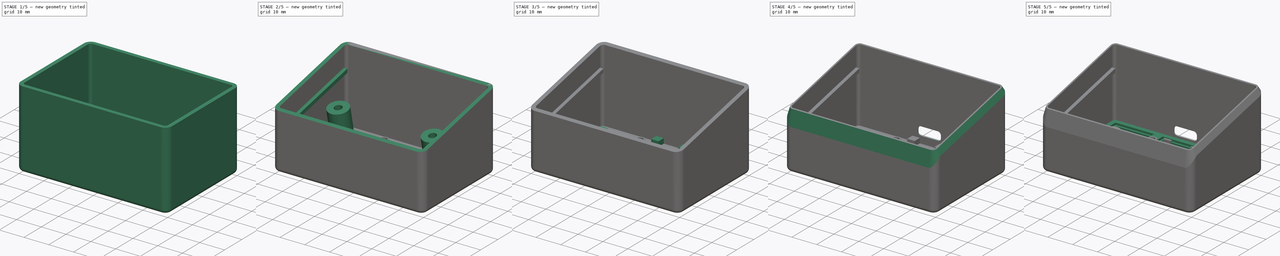
[diagram: build sequence overview — one tinted view per stage of 5, left to right]
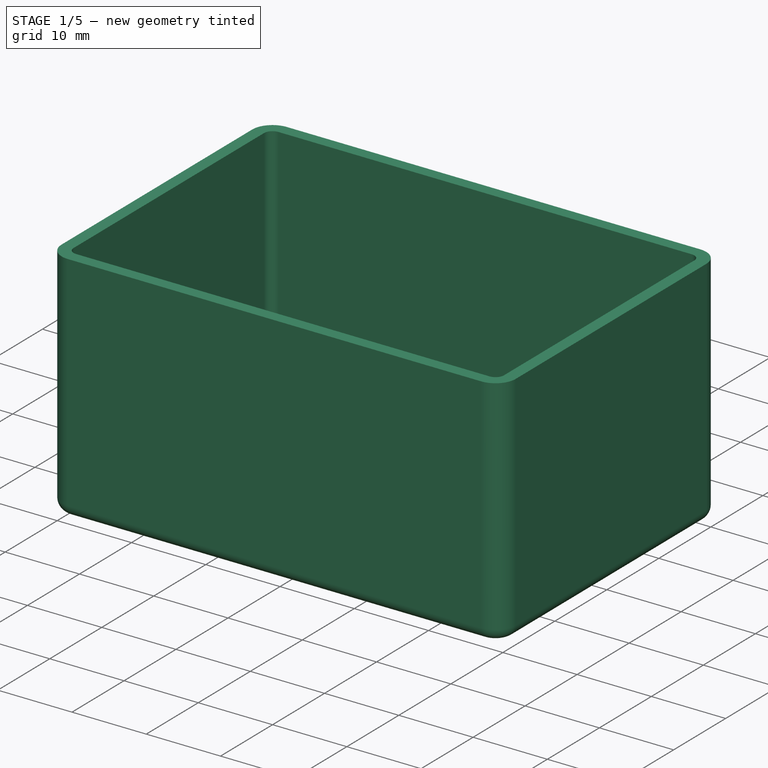
[diagram: stage 1 of 5 — iso view after this stage's code; geometry added in this stage tinted green]
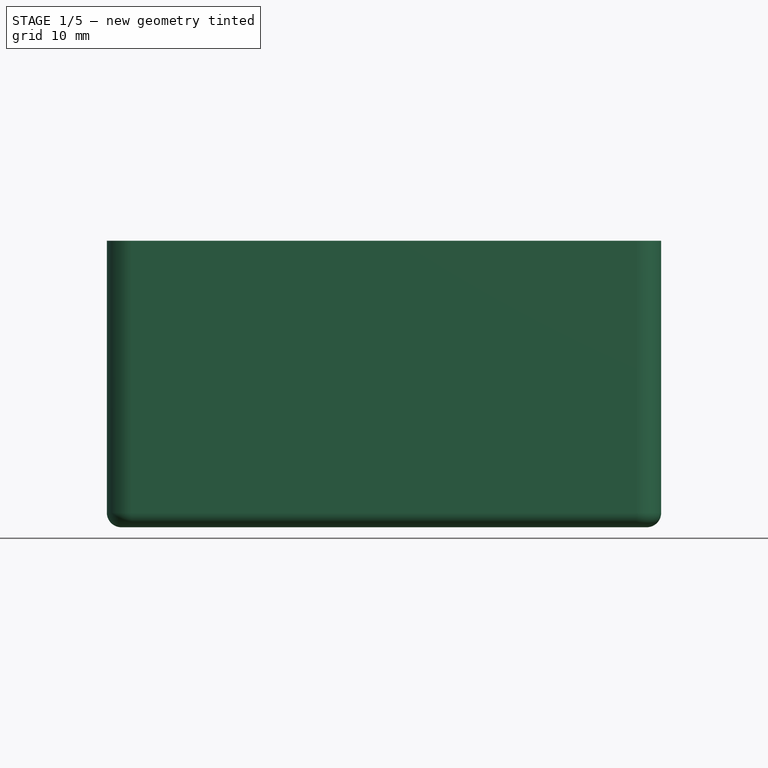
[diagram: stage 1 of 5 — front view after this stage's code; geometry added in this stage tinted green]
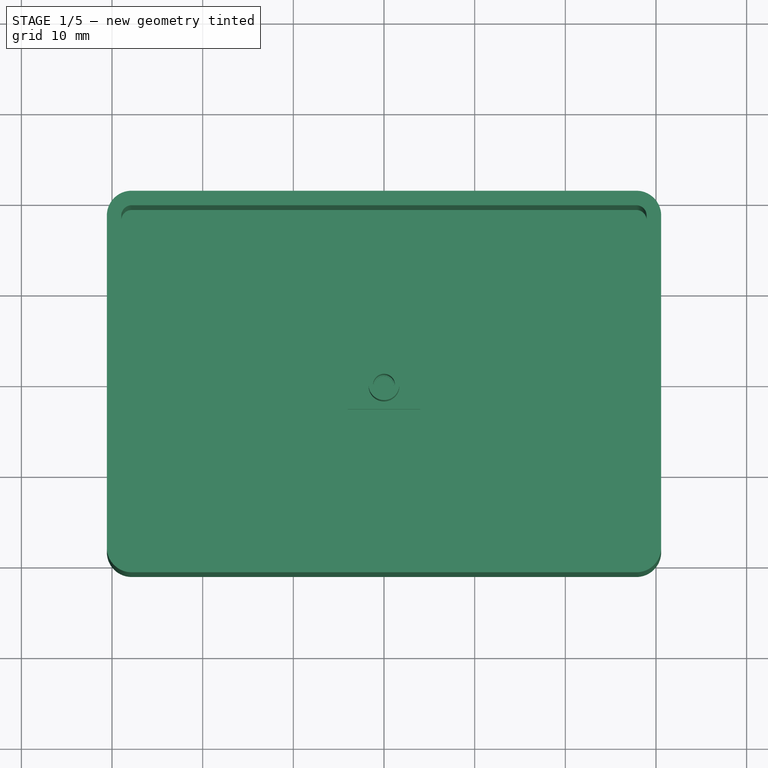
[diagram: stage 1 of 5 — top view after this stage's code; geometry added in this stage tinted green]
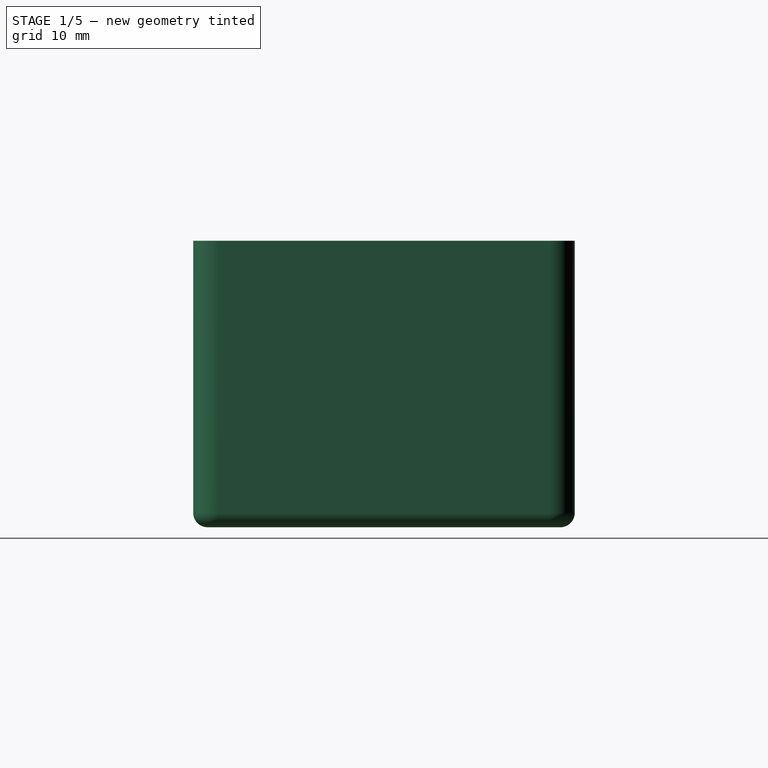
[diagram: stage 1 of 5 — right view after this stage's code; geometry added in this stage tinted green]
FCSTD DOCUMENT  (FreeCAD 1.0R39319 (Git))
Label: MacroPad3x2
License: All rights reserved
LicenseURL: https://en.wikipedia.org/wiki/All_rights_reserved
objects: Sketcher::SketchObject×15, PartDesign::Pad×8, PartDesign::Pocket×6, PartDesign::Chamfer×4, PartDesign::Body×4, Spreadsheet::Sheet×1, PartDesign::Thickness×1, PartDesign::Mirrored×1, PartDesign::Plane×1
note: 94 computed .brp shape members not serialized (recipe doc carries the construction recipe); baked Part::Feature solids carry a one-line shape summary decoded from their .brp

FEATURE [Sketcher::SketchObject] Sketch004
  ArcFitTolerance = 1e-06
  AttachmentSupport = -> [Pocket]
  ExternalGeometry = -> [Pocket]
  FullyConstrained = true
  MakeInternals = false
  MapMode = 5
  Placement = pos=(0,0,2.3) rot=(0,0,1;0rad)
  expr: Constraints[1] = Spreadsheet.plate_mouting_hole_diameter
  sketch-geometry (4):
    g0: GeomPoint [constr] X=-19.05 Y=4.126e-13 Z=0
    g1: GeomPoint [constr] X=19.05 Y=-6.2551e-12 Z=0
    g2: Circle CenterX=-19.05 CenterY=4.126e-13 CenterZ=0 NormalX=0 NormalY=0 NormalZ=1 AngleXU=0 Radius=1
    g3: Circle CenterX=19.05 CenterY=-6.2551e-12 CenterZ=0 NormalX=0 NormalY=0 NormalZ=1 AngleXU=0 Radius=1
  constraints (7):
    c: Coincident(g2,g0)
    c: Diameter(g2) = 2
    c: Coincident(g3,g1)
    c: Equal(g3,g2)
    c: DistanceX(g0,g1) = 38.1
    c: Symmetric(g-3,g-4,g0)
    c: Symmetric(g-5,g-6,g1)
FEATURE [Sketcher::SketchObject] Sketch005
  ArcFitTolerance = 1e-06
  AttachmentSupport = -> [XY_Plane004]
  FullyConstrained = true
  MakeInternals = false
  MapMode = 5
  expr: Constraints[18] = Spreadsheet.base_fillet
  expr: Constraints[20] = Spreadsheet.base_inner_width
  expr: Constraints[21] = Spreadsheet.base_inner_lenght
  sketch-geometry (10):
    g0: LineSegment StartX=-27.83 StartY=-19.445 StartZ=0 EndX=27.83 EndY=-19.445 EndZ=0
    g1: LineSegment StartX=28.97 StartY=-18.305 StartZ=0 EndX=28.97 EndY=18.305 EndZ=0
    g2: LineSegment StartX=27.83 StartY=19.445 StartZ=0 EndX=-27.83 EndY=19.445 EndZ=0
    g3: LineSegment StartX=-28.97 StartY=18.305 StartZ=0 EndX=-28.97 EndY=-18.305 EndZ=0
    g4: ArcOfCircle CenterX=-27.83 CenterY=-18.305 CenterZ=0 NormalX=0 NormalY=0 NormalZ=1 AngleXU=0 Radius=1.14 StartAngle=3.14159 EndAngle=4.71239
    g5: ArcOfCircle CenterX=27.83 CenterY=-18.305 CenterZ=0 NormalX=0 NormalY=0 NormalZ=1 AngleXU=0 Radius=1.14 StartAngle=4.71239 EndAngle=6.28319
    g6: ArcOfCircle CenterX=27.83 CenterY=18.305 CenterZ=0 NormalX=0 NormalY=0 NormalZ=1 AngleXU=0 Radius=1.14 StartAngle=-1.8e-15 EndAngle=1.5708
    g7: ArcOfCircle CenterX=-27.83 CenterY=18.305 CenterZ=0 NormalX=0 NormalY=0 NormalZ=1 AngleXU=0 Radius=1.14 StartAngle=1.5708 EndAngle=3.14159
    g8: GeomPoint [constr] X=28.97 Y=19.445 Z=0
    g9: GeomPoint [constr] X=0 Y=0 Z=0
  constraints (22):
    c: Tangent(g0,g4) = -1.5708
    c: Tangent(g0,g5) = -1.5708
    c: Tangent(g1,g5) = -1.5708
    c: Tangent(g1,g6) = -1.5708
    c: Tangent(g2,g6) = -1.5708
    c: Tangent(g2,g7) = -1.5708
    c: Tangent(g3,g7) = -1.5708
    c: Tangent(g3,g4) = -1.5708
    c: Horizontal(g0)
    c: Horizontal(g2)
    c: Vertical(g1)
    c: Vertical(g3)
    c: Equal(g4,g5)
    c: Equal(g5,g6)
    c: Equal(g6,g7)
    c: Symmetric(g2,g0,g9)
    c: PointOnObject(g8,g1)
    c: PointOnObject(g8,g2)
    c: Radius(g5) = 1.14
    c: Coincident(g9,g-1)
    c: Distance(g1,g3) = 57.94
    c: Distance(g2,g0) = 38.89
FEATURE [PartDesign::Pad] Pad002
  Direction = (0,0,1)
  Length = 30
  Length2 = 10
  Profile = -> Sketch005
  ReferenceAxis = -> Sketch005 [N_Axis]
  Refine = true
  Suppressed = false
  Type = 0
  expr: Length = Spreadsheet.base_height
FEATURE [PartDesign::Thickness] Thickness
  Base = -> Pad002 [Face10]
  BaseFeature = -> Pad002
  Intersection = false
  Join = 0
  Mode = 0
  Refine = true
  SupportTransform = false
  Suppressed = false
  Value = 1.6
  expr: Value = Spreadsheet.base_wall_thickness
FEATURE [PartDesign::Body] Body003  label="Base"
  AllowCompound = false
  Group = -> [Sketch005,Pad002,Thickness,Sketch006,Pocket005,Sketch007,Pad003,Mirrored,Sketch008,DatumPlane,Sketch009,Pad004,Sketch010,Pocket006,Sketch011,Pad005,Sketch012,Pad006,Sketch013,Pocket007,Sketch014,Pocket008,Chamfer001,Chamfer002,Chamfer003]
  Origin = -> Origin004
  Tip = -> Chamfer003
FEATURE [Sketcher::SketchObject] Sketch015
  ArcFitTolerance = 1e-06
  AttachmentSupport = -> [XY_Plane]
  FullyConstrained = true
  MakeInternals = false
  MapMode = 5
  sketch-geometry (2):
    g0: Circle CenterX=0 CenterY=0 CenterZ=0 NormalX=0 NormalY=0 NormalZ=1 AngleXU=0 Radius=1.2
    g1: Circle CenterX=0 CenterY=0 CenterZ=0 NormalX=0 NormalY=0 NormalZ=1 AngleXU=0 Radius=1.7
  constraints (4):
    c: Coincident(g0,g-1)
    c: Coincident(g1,g0)
    c: Diameter(g0) = 2.4
    c: Diameter(g1) = 3.4
FEATURE [PartDesign::Pad] Pad007
  Direction = (0,0,1)
  Length = 10.23
  Length2 = 10
  Profile = -> Sketch015
  ReferenceAxis = -> Sketch015 [N_Axis]
  Refine = true
  Suppressed = false
  Type = 0
FEATURE [PartDesign::Body] Body  label="Screw cover"
  AllowCompound = false
  Group = -> [Sketch015,Pad007]
  Origin = -> Origin
  Placement = pos=(19,2,6) rot=(1,0,0;0rad)
  Tip = -> Pad007
FEATURE [Sketcher::SketchObject] Sketch016
  ArcFitTolerance = 1e-06
  AttachmentSupport = -> [XY_Plane007]
  FullyConstrained = true
  MakeInternals = false
  MapMode = 5
  sketch-geometry (10):
    g0: Circle CenterX=0 CenterY=0 CenterZ=0 NormalX=0 NormalY=0 NormalZ=1 AngleXU=0 Radius=1.1
    g1: LineSegment [constr] StartX=-4 StartY=-2.55 StartZ=0 EndX=4 EndY=-2.55 EndZ=0
    g2: LineSegment [constr] StartX=4 StartY=-2.55 StartZ=0 EndX=4 EndY=2.55 EndZ=0
    g3: LineSegment [constr] StartX=4 StartY=2.55 StartZ=0 EndX=-4 EndY=2.55 EndZ=0
    g4: LineSegment [constr] StartX=-4 StartY=2.55 StartZ=0 EndX=-4 EndY=-2.55 EndZ=0
    g5: GeomPoint [constr] X=0 Y=0 Z=0
    g6: LineSegment StartX=-4 StartY=-2.55 StartZ=0 EndX=4 EndY=-2.55 EndZ=0
    g7: LineSegment StartX=4 StartY=-2.55 StartZ=0 EndX=4 EndY=5.55 EndZ=0
    g8: LineSegment StartX=4 StartY=5.55 StartZ=0 EndX=-4 EndY=5.55 EndZ=0
    g9: LineSegment StartX=-4 StartY=5.55 StartZ=0 EndX=-4 EndY=-2.55 EndZ=0
  constraints (24):
    c: Diameter(g0) = 2.2
    c: Coincident(g0,g-1)
    c: Coincident(g1,g2)
    c: Coincident(g2,g3)
    c: Coincident(g3,g4)
    c: Coincident(g4,g1)
    c: Horizontal(g1)
    c: Horizontal(g3)
    c: Vertical(g2)
    c: Vertical(g4)
    c: Symmetric(g3,g1,g5)
    c: Distance(g2,g4) = 8
    c: Distance(g1,g3) = 5.1
    c: Coincident(g5,g0)
    c: Coincident(g6,g7)
    c: Coincident(g7,g8)
    c: Coincident(g8,g9)
    c: Coincident(g9,g6)
    c: Horizontal(g8)
    c: Vertical(g7)
    c: Vertical(g9)
    c: Coincident(g6,g1)
    c: Coincident(g6,g1)
    c: Distance(g8,g3) = 3
FEATURE [PartDesign::Pad] Pad008
  Direction = (0,0,1)
  Length = 1.2
  Length2 = 10
  Profile = -> Sketch016
  ReferenceAxis = -> Sketch016 [N_Axis]
  Refine = true
  Suppressed = false
  Type = 0
FEATURE [PartDesign::Body] Body004  label="ESP Lock"
  AllowCompound = false
  Group = -> [Sketch016,Pad008]
  Origin = -> Origin007
  Placement = pos=(0,-8.7,3) rot=(0,0,1;0rad)
  Tip = -> Pad008
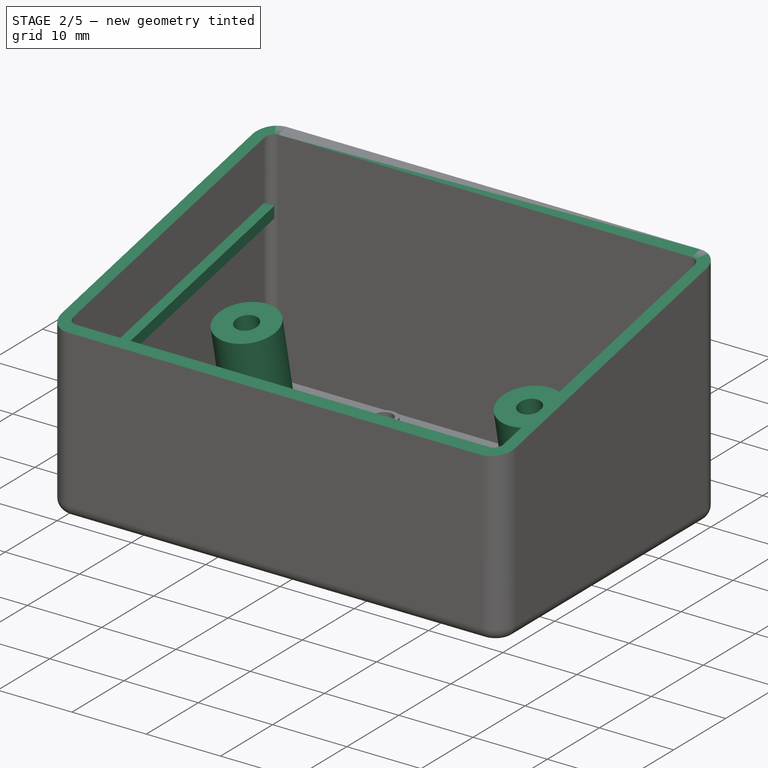
[diagram: stage 2 of 5 — iso view after this stage's code; geometry added in this stage tinted green]
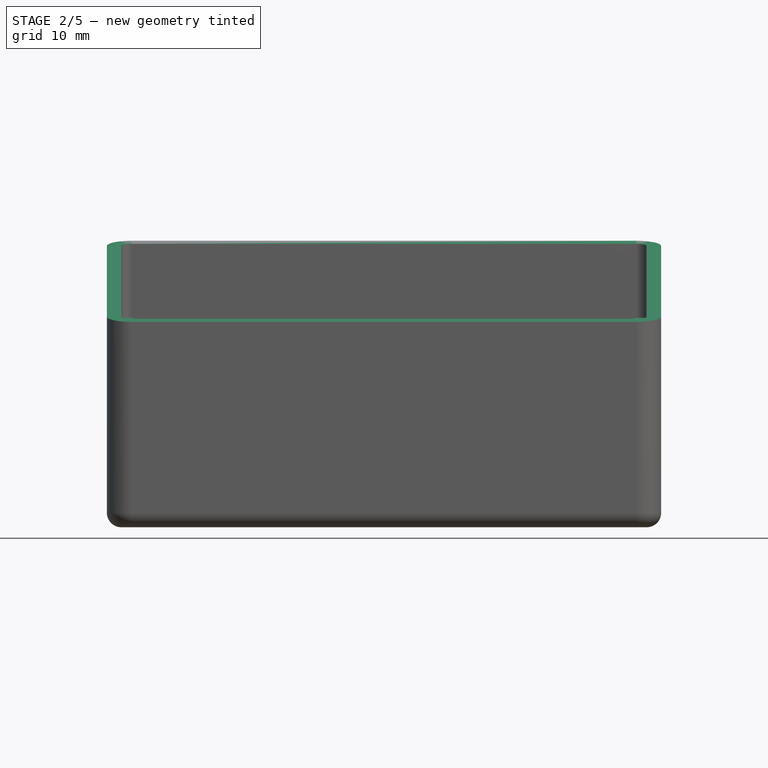
[diagram: stage 2 of 5 — front view after this stage's code; geometry added in this stage tinted green]
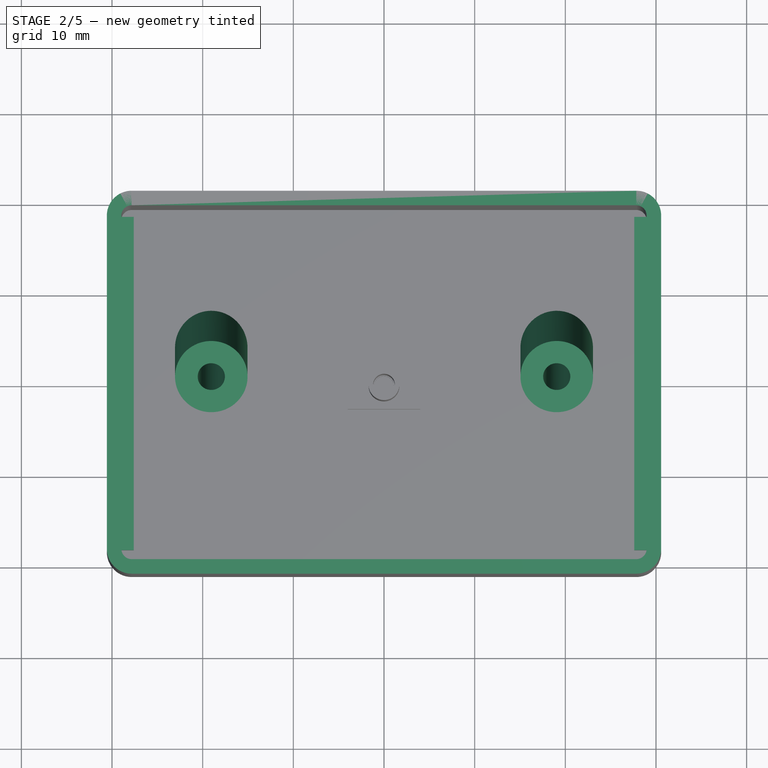
[diagram: stage 2 of 5 — top view after this stage's code; geometry added in this stage tinted green]
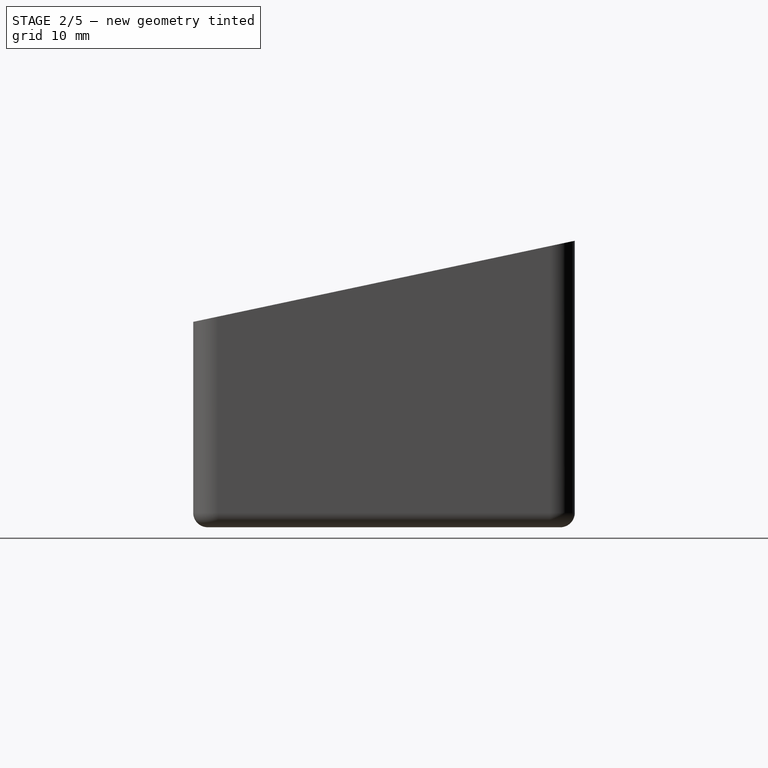
[diagram: stage 2 of 5 — right view after this stage's code; geometry added in this stage tinted green]
FEATURE [PartDesign::Body] Body002  label="Plate"
  AllowCompound = false
  Group = -> [Sketch002,Pad001,Sketch003,Pocket,Sketch004,Pocket004,Chamfer]
  Origin = -> Origin002
  Placement = pos=(0,0,16.0756) rot=(1,0,0;0.20944rad)
  Tip = -> Chamfer
  expr: .Placement.Base.z = Sketch008.Constraints.Y
  expr: .Placement.Rotation.Angle = Spreadsheet.base_height_angle
FEATURE [Sketcher::SketchObject] Sketch006
  ArcFitTolerance = 1e-06
  AttachmentSupport = -> [Thickness]
  ExternalGeometry = -> [Thickness]
  FullyConstrained = true
  MakeInternals = false
  MapMode = 5
  Placement = pos=(30.57,0,0) rot=(0.57735,0.57735,0.57735;2.0944rad)
  expr: Constraints[6] = Spreadsheet.base_height_angle
  sketch-geometry (3):
    g0: LineSegment StartX=21.045 StartY=30 StartZ=0 EndX=-21.045 EndY=30 EndZ=0
    g1: LineSegment StartX=-21.045 StartY=30 StartZ=0 EndX=-21.045 EndY=21.0535 EndZ=0
    g2: LineSegment StartX=-21.045 StartY=21.0535 StartZ=0 EndX=21.045 EndY=30 EndZ=0
  constraints (7):
    c: Coincident(g-3,g0)
    c: Coincident(g0,g-4)
    c: Coincident(g0,g1)
    c: PointOnObject(g1,g-4)
    c: Coincident(g1,g2)
    c: Coincident(g2,g0)
    c: Angle(g0,g2) = 0.20944
FEATURE [PartDesign::Pocket] Pocket005  label="Side Cut"
  BaseFeature = -> Thickness
  Direction = (-1,0,0)
  Length = 5
  Length2 = 5
  Profile = -> Sketch006
  ReferenceAxis = -> Sketch006 [N_Axis]
  Refine = true
  Suppressed = false
  Type = 1
FEATURE [Sketcher::SketchObject] Sketch007
  ArcFitTolerance = 1e-06
  AttachmentSupport = -> [Pocket005]
  ExternalGeometry = -> [Pocket005]
  FullyConstrained = true
  MakeInternals = false
  MapMode = 5
  Placement = pos=(28.97,0,0) rot=(0.57735,-0.57735,-0.57735;2.0944rad)
  expr: Constraints[10] = Spreadsheet.base_height_angle
  expr: Constraints[11] = Spreadsheet.base_height - Spreadsheet.base_plate_mouting_points_distance_to_top
  expr: Constraints[9] = Spreadsheet.base_plate_mouting_points_thickness
  sketch-geometry (4):
    g0: LineSegment StartX=-18.305 StartY=19.9665 StartZ=0 EndX=-18.305 EndY=21.5 EndZ=0
    g1: LineSegment StartX=-18.305 StartY=21.5 StartZ=0 EndX=18.305 EndY=13.7183 EndZ=0
    g2: LineSegment StartX=18.305 StartY=13.7183 StartZ=0 EndX=18.305 EndY=12.1848 EndZ=0
    g3: LineSegment StartX=18.305 StartY=12.1848 StartZ=0 EndX=-18.305 EndY=19.9665 EndZ=0
  constraints (12):
    c: PointOnObject(g0,g-3)
    c: PointOnObject(g0,g-3)
    c: Coincident(g0,g1)
    c: PointOnObject(g1,g-4)
    c: Coincident(g1,g2)
    c: PointOnObject(g2,g-4)
    c: Coincident(g2,g3)
    c: Coincident(g3,g0)
    c: Parallel(g3,g1)
    c: Distance(g1,g3) = 1.5
    c: Angle(g1,g-1) = 0.20944
    c: DistanceY(g-3,g0) = 21.5
FEATURE [PartDesign::Pad] Pad003  label="Plate mouting point"
  BaseFeature = -> Pocket005
  Direction = (-1,0,0)
  Length = 1.37
  Length2 = 10
  Profile = -> Sketch007
  ReferenceAxis = -> Sketch007 [N_Axis]
  Refine = true
  Suppressed = false
  Type = 0
  expr: Length = Spreadsheet.plate_wall_thickness - Spreadsheet.base_tolerance_offset
FEATURE [PartDesign::Mirrored] Mirrored
  BaseFeature = -> Pad003
  MirrorPlane = -> YZ_Plane004
  Originals = -> [Pad003]
  Refine = true
  Suppressed = false
  TransformMode = 0
FEATURE [Sketcher::SketchObject] Sketch008  label="Height_of_mouting_points"
  ArcFitTolerance = 1e-06
  AttachmentSupport = -> [Mirrored]
  ExternalGeometry = -> [Mirrored]
  FullyConstrained = true
  MakeInternals = false
  MapMode = 5
  Placement = pos=(27.6,0,0) rot=(0.57735,-0.57735,-0.57735;2.0944rad)
  sketch-geometry (2):
    g0: GeomPoint [constr] X=9e-16 Y=16.0756 Z=0
    g1: GeomPoint [constr] X=3.9e-15 Y=16.0756 Z=0
  constraints (3):
    c: Symmetric(g-3,g-3,g0)
    c: Symmetric(g-3,g-3,g1)
    c: DistanceY(g-1,g0) = 16.0756  'Y'
FEATURE [PartDesign::Plane] DatumPlane
  AttachmentSupport = -> [Mirrored]
  Length = 73.2836
  MapMode = 5
  Placement = pos=(0,-3.26928,15.3807) rot=(1,0,0;3.35103rad)
  ResizeMode = 0
  Width = 72.4429
FEATURE [Sketcher::SketchObject] Sketch009
  ArcFitTolerance = 1e-06
  AttachmentSupport = -> [DatumPlane]
  ExternalGeometry = -> [Mirrored]
  FullyConstrained = true
  MakeInternals = false
  MapMode = 5
  Placement = pos=(0,-3.26928,15.3807) rot=(1,0,0;3.35103rad)
  expr: Constraints[2] = Spreadsheet.base_plate_mouting_hole_diameter
  expr: Constraints[3] = Spreadsheet.base_plate_mouting_hole_outer_diameter
  expr: Constraints[6] = Spreadsheet.plate_mouting_hole_spacing
  expr: Constraints[9] = Spreadsheet.base_plate_mouting_hole_offset
  sketch-geometry (5):
    g0: Circle CenterX=-19.05 CenterY=-4.14231 CenterZ=0 NormalX=0 NormalY=0 NormalZ=1 AngleXU=0 Radius=1.5
    g1: Circle CenterX=-19.05 CenterY=-4.14231 CenterZ=0 NormalX=0 NormalY=0 NormalZ=1 AngleXU=0 Radius=4
    g2: Circle CenterX=19.05 CenterY=-4.14231 CenterZ=0 NormalX=0 NormalY=0 NormalZ=1 AngleXU=0 Radius=1.5
    g3: Circle CenterX=19.05 CenterY=-4.14231 CenterZ=0 NormalX=0 NormalY=0 NormalZ=1 AngleXU=0 Radius=4
    g4: GeomPoint [constr] X=27.6 Y=-3.34231 Z=0
  constraints (10):
    c: Coincident(g1,g0)
    c: Coincident(g3,g2)
    c: Diameter(g2) = 3
    c: Diameter(g3) = 8
    c: Equal(g2,g0)
    c: Equal(g1,g3)
    c: DistanceX(g0,g2) = 38.1
    c: Symmetric(g0,g2,g-2)
    c: Symmetric(g-3,g-3,g4)
    c: DistanceY(g2,g4) = 0.8
FEATURE [PartDesign::Pad] Pad004
  BaseFeature = -> Mirrored
  Direction = (0,0.207912,-0.978148)
  Length = 10
  Length2 = 10
  Profile = -> Sketch009
  ReferenceAxis = -> Sketch009 [N_Axis]
  Refine = true
  Suppressed = false
  Type = 3
  UpToFace = -> Mirrored [Face2]
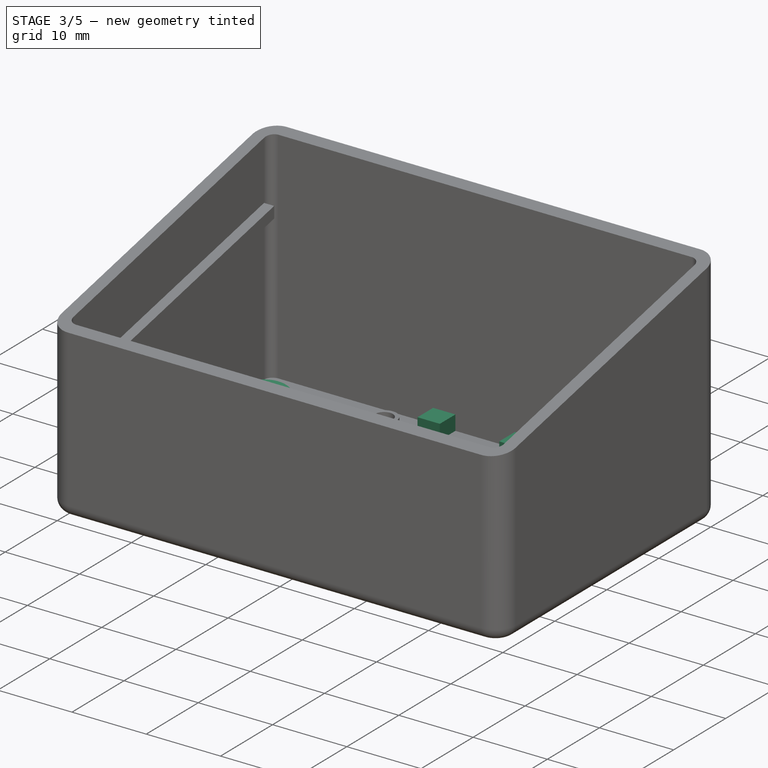
[diagram: stage 3 of 5 — iso view after this stage's code; geometry added in this stage tinted green]
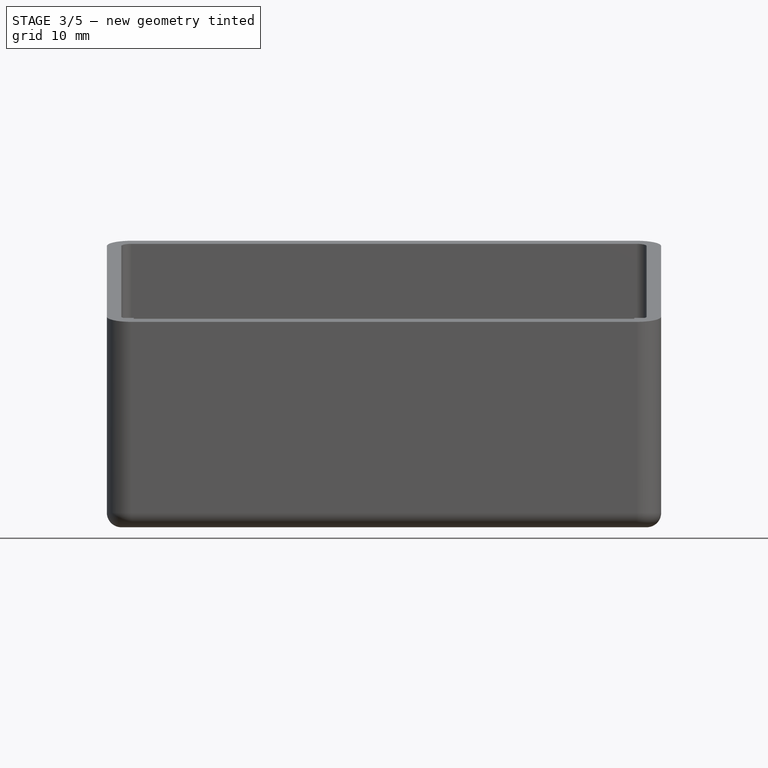
[diagram: stage 3 of 5 — front view after this stage's code; geometry added in this stage tinted green]
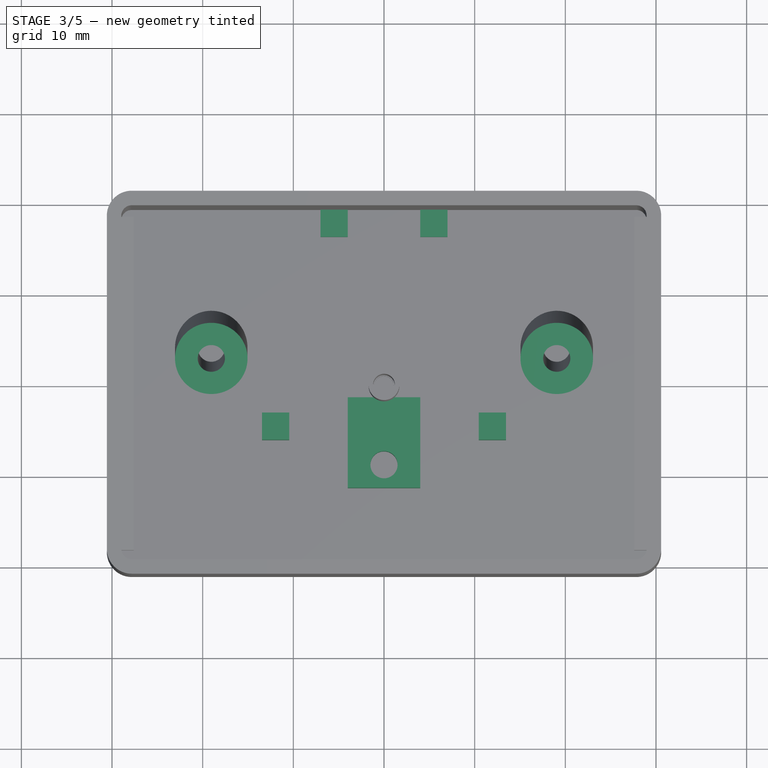
[diagram: stage 3 of 5 — top view after this stage's code; geometry added in this stage tinted green]
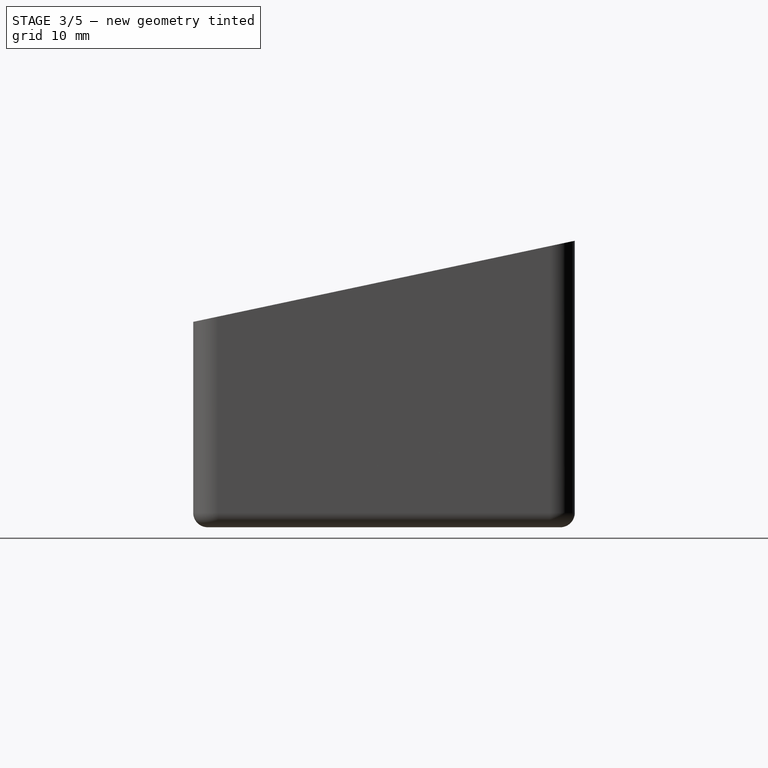
[diagram: stage 3 of 5 — right view after this stage's code; geometry added in this stage tinted green]
FEATURE [Sketcher::SketchObject] Sketch010
  ArcFitTolerance = 1e-06
  AttachmentSupport = -> [Pad004]
  ExternalGeometry = -> [Pad004]
  FullyConstrained = true
  MakeInternals = false
  MapMode = 5
  Placement = pos=(0,-3.26928,15.3807) rot=(1,0,0;0.20944rad)
  sketch-geometry (2):
    g0: Circle CenterX=-19.05 CenterY=4.14231 CenterZ=0 NormalX=0 NormalY=0 NormalZ=1 AngleXU=0 Radius=4
    g1: Circle CenterX=19.05 CenterY=4.14231 CenterZ=0 NormalX=0 NormalY=0 NormalZ=1 AngleXU=0 Radius=4
  constraints (4):
    c: Coincident(g0,g-3)
    c: Equal(g0,g-3)
    c: Coincident(g1,g-4)
    c: Equal(g1,g-4)
FEATURE [PartDesign::Pocket] Pocket006  label="esp mount holes pocket"
  BaseFeature = -> Pad004
  Direction = (0,0.207912,-0.978148)
  Length = 10.5
  Length2 = 5
  Profile = -> Sketch010
  ReferenceAxis = -> Sketch010 [N_Axis]
  Refine = true
  Suppressed = false
  Type = 0
  expr: Length = Spreadsheet.base_height - Spreadsheet.base_plate_mouting_points_distance_to_top - 11
FEATURE [Sketcher::SketchObject] Sketch011
  ArcFitTolerance = 1e-06
  AttachmentSupport = -> [Pocket006]
  ExternalGeometry = -> [Pocket006]
  FullyConstrained = true
  MakeInternals = false
  MapMode = 5
  expr: Constraints[39] = Spreadsheet.esp_mouting_points_dimensions_smaller
  expr: Constraints[60] = Spreadsheet.esp_tolerance_offset
  expr: Constraints[61] = Spreadsheet.esp_mouting_points_dimensions_smaller
  expr: Constraints[63] = Spreadsheet.esp_tolerance_offset
  expr: Constraints[66] = Spreadsheet.esp_tolerance_offset
  expr: Constraints[67] = Spreadsheet.esp_tolerance_offset
  expr: Constraints[7] = Spreadsheet.esp_width
  expr: Constraints[8] = Spreadsheet.esp_lenght
  expr: Constraints[9] = Spreadsheet.esp_tolerance_offset
  sketch-geometry (24):
    g0: LineSegment [constr] StartX=-10.25 StartY=19.245 StartZ=0 EndX=-10.25 EndY=-5.755 EndZ=0
    g1: LineSegment [constr] StartX=-10.25 StartY=-5.755 StartZ=0 EndX=10.25 EndY=-5.755 EndZ=0
    g2: LineSegment [constr] StartX=10.25 StartY=-5.755 StartZ=0 EndX=10.25 EndY=19.245 EndZ=0
    g3: LineSegment [constr] StartX=10.25 StartY=19.245 StartZ=0 EndX=-10.25 EndY=19.245 EndZ=0
    g4: LineSegment StartX=-4 StartY=-1.255 StartZ=0 EndX=-4 EndY=-11.255 EndZ=0
    g5: LineSegment StartX=-4 StartY=-11.255 StartZ=0 EndX=4 EndY=-11.255 EndZ=0
    g6: LineSegment StartX=4 StartY=-11.255 StartZ=0 EndX=4 EndY=-1.255 EndZ=0
    g7: LineSegment StartX=4 StartY=-1.255 StartZ=0 EndX=-4 EndY=-1.255 EndZ=0
    g8: LineSegment StartX=-7 StartY=19.445 StartZ=0 EndX=-7 EndY=16.445 EndZ=0
    g9: LineSegment StartX=-7 StartY=16.445 StartZ=0 EndX=-4 EndY=16.445 EndZ=0
    g10: LineSegment StartX=-4 StartY=16.445 StartZ=0 EndX=-4 EndY=19.445 EndZ=0
    g11: LineSegment StartX=-4 StartY=19.445 StartZ=0 EndX=-7 EndY=19.445 EndZ=0
    g12: LineSegment StartX=4 StartY=19.445 StartZ=0 EndX=4 EndY=16.445 EndZ=0
    g13: LineSegment StartX=4 StartY=16.445 StartZ=0 EndX=7 EndY=16.445 EndZ=0
    g14: LineSegment StartX=7 StartY=16.445 StartZ=0 EndX=7 EndY=19.445 EndZ=0
    g15: LineSegment StartX=7 StartY=19.445 StartZ=0 EndX=4 EndY=19.445 EndZ=0
    g16: LineSegment StartX=-13.45 StartY=-2.955 StartZ=0 EndX=-13.45 EndY=-5.955 EndZ=0
    g17: LineSegment StartX=-13.45 StartY=-5.955 StartZ=0 EndX=-10.45 EndY=-5.955 EndZ=0
    g18: LineSegment StartX=-10.45 StartY=-5.955 StartZ=0 EndX=-10.45 EndY=-2.955 EndZ=0
    g19: LineSegment StartX=-10.45 StartY=-2.955 StartZ=0 EndX=-13.45 EndY=-2.955 EndZ=0
    g20: LineSegment StartX=10.45 StartY=-2.955 StartZ=0 EndX=10.45 EndY=-5.955 EndZ=0
    g21: LineSegment StartX=10.45 StartY=-5.955 StartZ=0 EndX=13.45 EndY=-5.955 EndZ=0
    g22: LineSegment StartX=13.45 StartY=-5.955 StartZ=0 EndX=13.45 EndY=-2.955 EndZ=0
    g23: LineSegment StartX=13.45 StartY=-2.955 StartZ=0 EndX=10.45 EndY=-2.955 EndZ=0
  constraints (69):
    c: Coincident(g0,g1)
    c: Coincident(g1,g2)
    c: Coincident(g2,g3)
    c: Coincident(g3,g0)
    c: Vertical(g0)
    c: Vertical(g2)
    c: Horizontal(g3)
    c: DistanceX(g1,g1) = 20.5
    c: DistanceY(g2,g2) = 25
    c: Distance(g3,g-3) = 0.2
    c: Symmetric(g0,g1,g-2)
    c: Coincident(g4,g5)
    c: Coincident(g5,g6)
    c: Coincident(g6,g7)
    c: Coincident(g7,g4)
    c: Vertical(g4)
    c: Vertical(g6)
    c: Horizontal(g7)
    c: DistanceY(g6,g6) = 10
    c: DistanceX(g7,g7) = 8
    c: Symmetric(g4,g5,g-2)
    c: Coincident(g8,g9)
    c: Coincident(g9,g10)
    c: Coincident(g10,g11)
    c: Coincident(g11,g8)
    c: Vertical(g8)
    c: Vertical(g10)
    c: Horizontal(g9)
    c: Horizontal(g11)
    c: PointOnObject(g8,g-3)
    c: Coincident(g12,g13)
    c: Coincident(g13,g14)
    c: Coincident(g14,g15)
    c: Coincident(g15,g12)
    c: Vertical(g12)
    c: Vertical(g14)
    c: Horizontal(g13)
    c: Horizontal(g15)
    c: PointOnObject(g12,g-3)
    c: DistanceY(g10,g10) = 3
    c: Equal(g9,g10)
    c: Equal(g13,g12)
    c: Symmetric(g9,g12,g-2)
    c: Distance(g12,g10) = 8
    c: Coincident(g16,g17)
    c: Coincident(g17,g18)
    c: Coincident(g18,g19)
    c: Coincident(g19,g16)
    c: Vertical(g16)
    c: Vertical(g18)
    c: Horizontal(g17)
    c: Horizontal(g19)
    c: Coincident(g20,g21)
    c: Coincident(g21,g22)
    c: Coincident(g22,g23)
    c: Coincident(g23,g20)
    c: Vertical(g20)
    c: Vertical(g22)
    c: Horizontal(g21)
    c: Horizontal(g23)
    c: Distance(g0,g18) = 0.2
    c: DistanceX(g17,g17) = 3
    c: Equal(g17,g16)
    c: DistanceY(g17,g0) = 0.2
    c: Equal(g21,g20)
    c: Equal(g21,g17)
    c: Distance(g2,g20) = 0.2
    c: DistanceY(g20,g1) = 0.2
    c: Distance(g7,g1) = 4.5
FEATURE [PartDesign::Pad] Pad005  label="esp lock points"
  BaseFeature = -> Pocket006
  Direction = (0,0,1)
  Length = 2
  Length2 = 10
  Profile = -> Sketch011
  ReferenceAxis = -> Sketch011 [N_Axis]
  Refine = true
  Suppressed = false
  Type = 0
  expr: Length = Spreadsheet.esp_mouting_points_height
FEATURE [Sketcher::SketchObject] Sketch012
  ArcFitTolerance = 1e-06
  AttachmentSupport = -> [Pad005]
  ExternalGeometry = -> [Pad005]
  FullyConstrained = true
  MakeInternals = false
  MapMode = 5
  Placement = pos=(0,0,2) rot=(0,0,1;0rad)
  expr: Constraints[36] = Spreadsheet.esp_width
  expr: Constraints[37] = Spreadsheet.esp_lenght
  expr: Constraints[39] = Spreadsheet.esp_tolerance_offset
  expr: Constraints[40] = Spreadsheet.esp_tolerance_offset * 2
  sketch-geometry (16):
    g0: LineSegment StartX=-13.45 StartY=-2.955 StartZ=0 EndX=-13.45 EndY=-5.955 EndZ=0
    g1: LineSegment StartX=-13.45 StartY=-5.955 StartZ=0 EndX=-10.45 EndY=-5.955 EndZ=0
    g2: LineSegment StartX=-10.45 StartY=-5.955 StartZ=0 EndX=-10.45 EndY=-2.955 EndZ=0
    g3: LineSegment StartX=-10.45 StartY=-2.955 StartZ=0 EndX=-13.45 EndY=-2.955 EndZ=0
    g4: LineSegment StartX=13.45 StartY=-5.955 StartZ=0 EndX=13.45 EndY=-2.955 EndZ=0
    g5: LineSegment StartX=13.45 StartY=-2.955 StartZ=0 EndX=10.45 EndY=-2.955 EndZ=0
    g6: LineSegment StartX=10.45 StartY=-2.955 StartZ=0 EndX=10.45 EndY=-5.955 EndZ=0
    g7: LineSegment StartX=10.45 StartY=-5.955 StartZ=0 EndX=13.45 EndY=-5.955 EndZ=0
    g8: LineSegment StartX=-4 StartY=-6.155 StartZ=0 EndX=-4 EndY=-11.255 EndZ=0
    g9: LineSegment StartX=-4 StartY=-11.255 StartZ=0 EndX=4 EndY=-11.255 EndZ=0
    g10: LineSegment StartX=4 StartY=-11.255 StartZ=0 EndX=4 EndY=-6.155 EndZ=0
    g11: LineSegment StartX=4 StartY=-6.155 StartZ=0 EndX=-4 EndY=-6.155 EndZ=0
    g12: LineSegment [constr] StartX=-10.25 StartY=19.245 StartZ=0 EndX=-10.25 EndY=-5.755 EndZ=0
    g13: LineSegment [constr] StartX=-10.25 StartY=-5.755 StartZ=0 EndX=10.25 EndY=-5.755 EndZ=0
    g14: LineSegment [constr] StartX=10.25 StartY=-5.755 StartZ=0 EndX=10.25 EndY=19.245 EndZ=0
    g15: LineSegment [constr] StartX=10.25 StartY=19.245 StartZ=0 EndX=-10.25 EndY=19.245 EndZ=0
  constraints (42):
    c: Coincident(g0,g1)
    c: Coincident(g1,g2)
    c: Coincident(g2,g3)
    c: Coincident(g3,g0)
    c: Vertical(g0)
    c: Vertical(g2)
    c: Horizontal(g1)
    c: Horizontal(g3)
    c: Coincident(g0,g-3)
    c: Coincident(g1,g-6)
    c: Coincident(g4,g5)
    c: Coincident(g5,g6)
    c: Coincident(g6,g7)
    c: Coincident(g7,g4)
    c: Vertical(g4)
    c: Vertical(g6)
    c: Horizontal(g5)
    c: Horizontal(g7)
    c: Coincident(g4,g-4)
    c: Coincident(g5,g-5)
    c: Coincident(g8,g9)
    c: Coincident(g9,g10)
    c: Coincident(g10,g11)
    c: Coincident(g11,g8)
    c: Vertical(g8)
    c: Vertical(g10)
    c: Horizontal(g9)
    c: Horizontal(g11)
    c: PointOnObject(g9,g-8)
    c: Coincident(g12,g13)
    c: Coincident(g13,g14)
    c: Coincident(g14,g15)
    c: Coincident(g15,g12)
    c: Vertical(g12)
    c: Vertical(g14)
    c: Horizontal(g15)
    c: DistanceX(g13,g13) = 20.5
    c: DistanceY(g14,g14) = 25
    c: Symmetric(g12,g13,g-2)
    c: Distance(g15,g-9) = 0.2
    c: Distance(g11,g13) = 0.4
    c: Coincident(g8,g-7)
FEATURE [PartDesign::Pad] Pad006
  BaseFeature = -> Pad005
  Direction = (0,0,1)
  Length = 1
  Length2 = 10
  Profile = -> Sketch012
  ReferenceAxis = -> Sketch012 [N_Axis]
  Refine = true
  Suppressed = false
  Type = 0
  expr: Length = Spreadsheet.esp_mouting_points_dimensions_smaller - Spreadsheet.esp_mouting_points_height
FEATURE [Sketcher::SketchObject] Sketch013
  ArcFitTolerance = 1e-06
  AttachmentSupport = -> [Pad006]
  ExternalGeometry = -> [Pad006]
  FullyConstrained = true
  MakeInternals = false
  MapMode = 5
  Placement = pos=(0,0,3) rot=(0,0,1;0rad)
  expr: Constraints[1] = Spreadsheet.esp_mouting_hole_dimension
  sketch-geometry (1):
    g0: Circle CenterX=-3e-16 CenterY=-8.705 CenterZ=0 NormalX=0 NormalY=0 NormalZ=1 AngleXU=0 Radius=1.5
  constraints (2):
    c: Symmetric(g-3,g-4,g0)
    c: Diameter(g0) = 3
FEATURE [PartDesign::Pocket] Pocket007
  BaseFeature = -> Pad006
  Direction = (0,0,-1)
  Length = 3
  Length2 = 5
  Profile = -> Sketch013
  ReferenceAxis = -> Sketch013 [N_Axis]
  Refine = true
  Suppressed = false
  Type = 0
  expr: Length = Spreadsheet.esp_mouting_hole_pocket
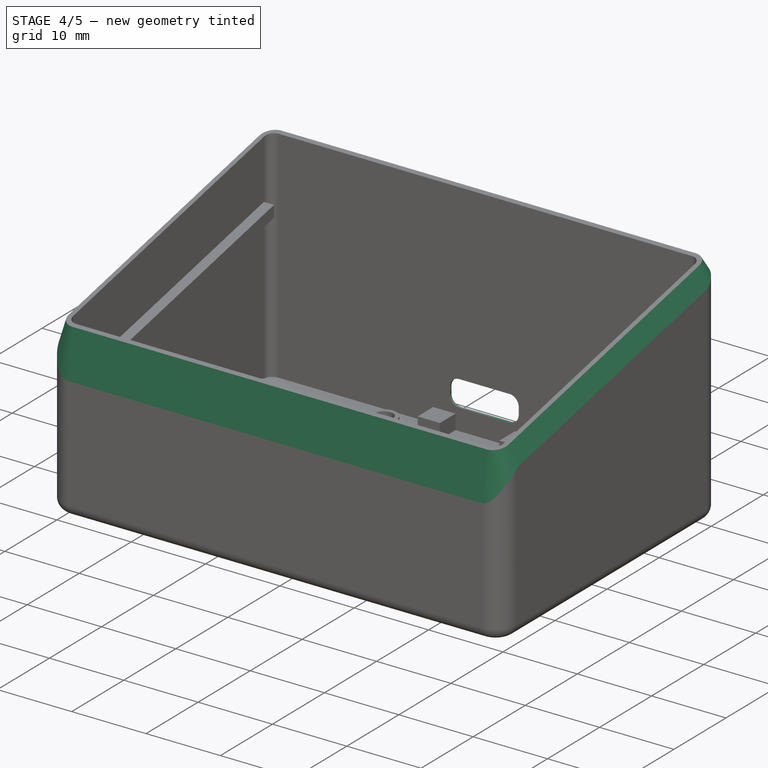
[diagram: stage 4 of 5 — iso view after this stage's code; geometry added in this stage tinted green]
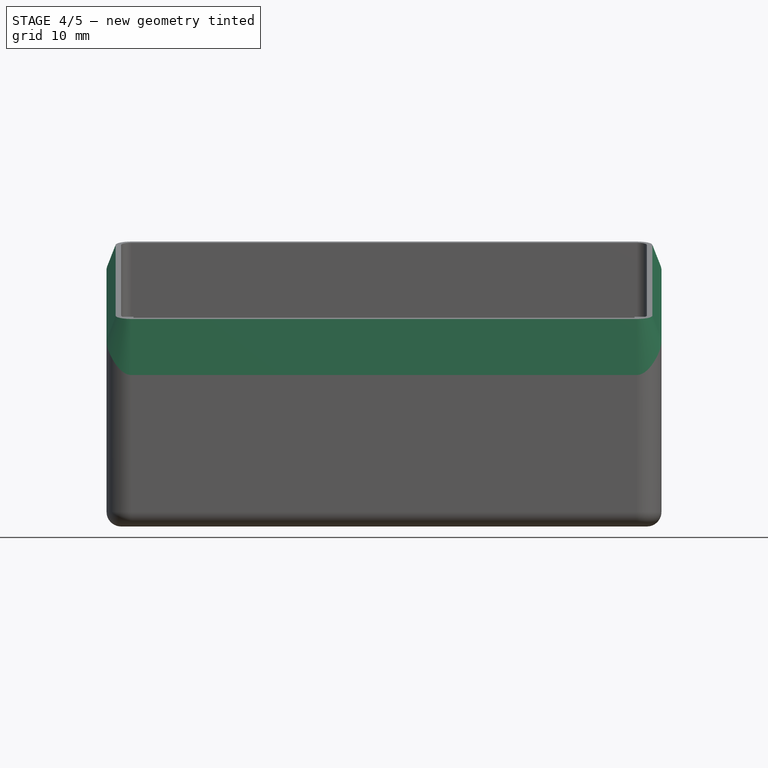
[diagram: stage 4 of 5 — front view after this stage's code; geometry added in this stage tinted green]
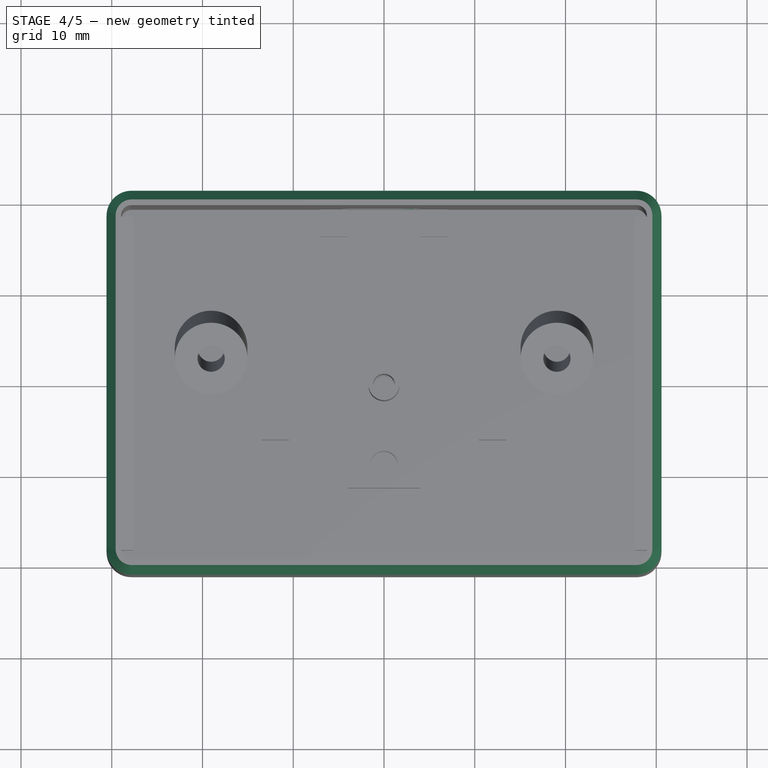
[diagram: stage 4 of 5 — top view after this stage's code; geometry added in this stage tinted green]
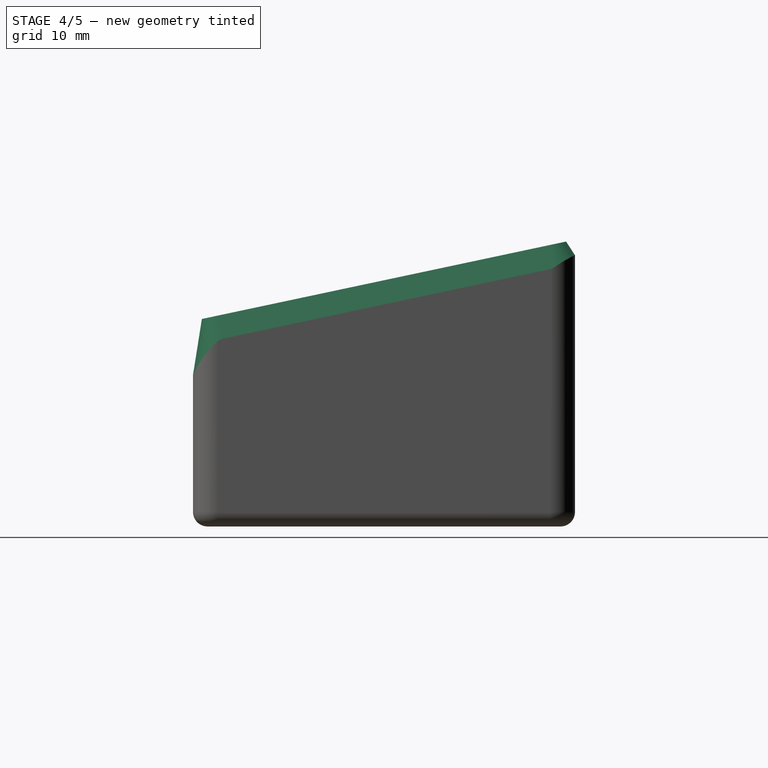
[diagram: stage 4 of 5 — right view after this stage's code; geometry added in this stage tinted green]
FEATURE [Sketcher::SketchObject] Sketch014
  ArcFitTolerance = 1e-06
  AttachmentSupport = -> [Pocket007]
  FullyConstrained = true
  MakeInternals = false
  MapMode = 5
  Placement = pos=(0,21.045,0) rot=(0,0.707107,0.707107;3.14159rad)
  expr: Constraints[17] = Spreadsheet.usb_width + Spreadsheet.usb_offset
  expr: Constraints[18] = Spreadsheet.usb_height + Spreadsheet.usb_offset
  expr: Constraints[19] = Spreadsheet.usb_fillet
  expr: Constraints[21] = Spreadsheet.usb_distance_from_top
  sketch-geometry (10):
    g0: LineSegment StartX=-3.255 StartY=2.87 StartZ=0 EndX=3.495 EndY=2.87 EndZ=0
    g1: LineSegment StartX=4.745 StartY=4.12 StartZ=0 EndX=4.745 EndY=5.08 EndZ=0
    g2: LineSegment StartX=3.495 StartY=6.33 StartZ=0 EndX=-3.255 EndY=6.33 EndZ=0
    g3: LineSegment StartX=-4.505 StartY=5.08 StartZ=0 EndX=-4.505 EndY=4.12 EndZ=0
    g4: ArcOfCircle CenterX=-3.255 CenterY=4.12 CenterZ=0 NormalX=0 NormalY=0 NormalZ=1 AngleXU=0 Radius=1.25 StartAngle=3.14159 EndAngle=4.71239
    g5: ArcOfCircle CenterX=3.495 CenterY=4.12 CenterZ=0 NormalX=0 NormalY=0 NormalZ=1 AngleXU=0 Radius=1.25 StartAngle=4.71239 EndAngle=6.28319
    g6: ArcOfCircle CenterX=3.495 CenterY=5.08 CenterZ=0 NormalX=0 NormalY=0 NormalZ=1 AngleXU=0 Radius=1.25 StartAngle=0 EndAngle=1.5708
    g7: ArcOfCircle CenterX=-3.255 CenterY=5.08 CenterZ=0 NormalX=0 NormalY=0 NormalZ=1 AngleXU=0 Radius=1.25 StartAngle=1.5708 EndAngle=3.14159
    g8: GeomPoint [constr] X=4.745 Y=6.33 Z=0
    g9: GeomPoint [constr] X=0.12 Y=4.6 Z=0
  constraints (23):
    c: Tangent(g0,g4) = -1.5708
    c: Tangent(g0,g5) = -1.5708
    c: Tangent(g1,g5) = -1.5708
    c: Tangent(g1,g6) = -1.5708
    c: Tangent(g2,g6) = -1.5708
    c: Tangent(g2,g7) = -1.5708
    c: Tangent(g3,g7) = -1.5708
    c: Tangent(g3,g4) = -1.5708
    c: Horizontal(g0)
    c: Horizontal(g2)
    c: Vertical(g1)
    c: Vertical(g3)
    c: Equal(g4,g5)
    c: Equal(g5,g6)
    c: Equal(g6,g7)
    c: PointOnObject(g8,g1)
    c: PointOnObject(g8,g2)
    c: Distance(g1,g3) = 9.25
    c: Distance(g0,g2) = 3.46
    c: Radius(g5) = 1.25
    c: Symmetric(g2,g0,g9)
    c: Distance(g9,g-1) = 4.6
    c: Distance(g9,g-2) = 0.12
FEATURE [PartDesign::Pocket] Pocket008  label="USB pocket"
  BaseFeature = -> Pocket007
  Direction = (0,-1,2e-16)
  Length = 5
  Length2 = 5
  Profile = -> Sketch014
  ReferenceAxis = -> Sketch014 [N_Axis]
  Refine = true
  Suppressed = false
  Type = 2
FEATURE [PartDesign::Chamfer] Chamfer001  label="USB Chamfer"
  Angle = 29
  Base = -> Pocket008 [Edge134,Edge141,Edge140,Edge139,Edge138,Edge137,Edge136,Edge135]
  BaseFeature = -> Pocket008
  ChamferType = 0
  FlipDirection = false
  Refine = true
  Size = 1.3
  Size2 = 1
  SupportTransform = false
  Suppressed = false
  UseAllEdges = false
  expr: Size = Spreadsheet.usb_chamfer
FEATURE [PartDesign::Chamfer] Chamfer002  label="Plate Mout points chamfer"
  Angle = 45
  Base = -> Chamfer001 [Edge161,Edge143]
  BaseFeature = -> Chamfer001
  ChamferType = 0
  FlipDirection = false
  Refine = true
  Size = 1.3
  Size2 = 1
  SupportTransform = false
  Suppressed = false
  UseAllEdges = false
  expr: Size = Spreadsheet.base_plate_mouting_points_thickness - 0.2
FEATURE [PartDesign::Chamfer] Chamfer003
  Angle = 69
  Base = -> Chamfer002 [Edge56]
  BaseFeature = -> Chamfer002
  ChamferType = 2
  FlipDirection = false
  Refine = true
  Size = 1
  Size2 = 1
  SupportTransform = false
  Suppressed = false
  UseAllEdges = false
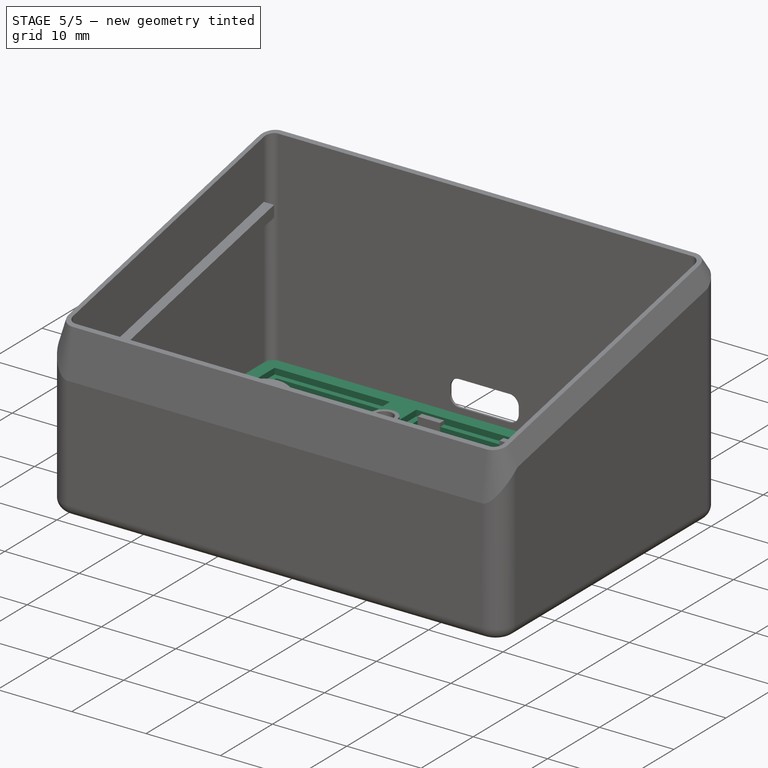
[diagram: stage 5 of 5 — iso view after this stage's code; geometry added in this stage tinted green]
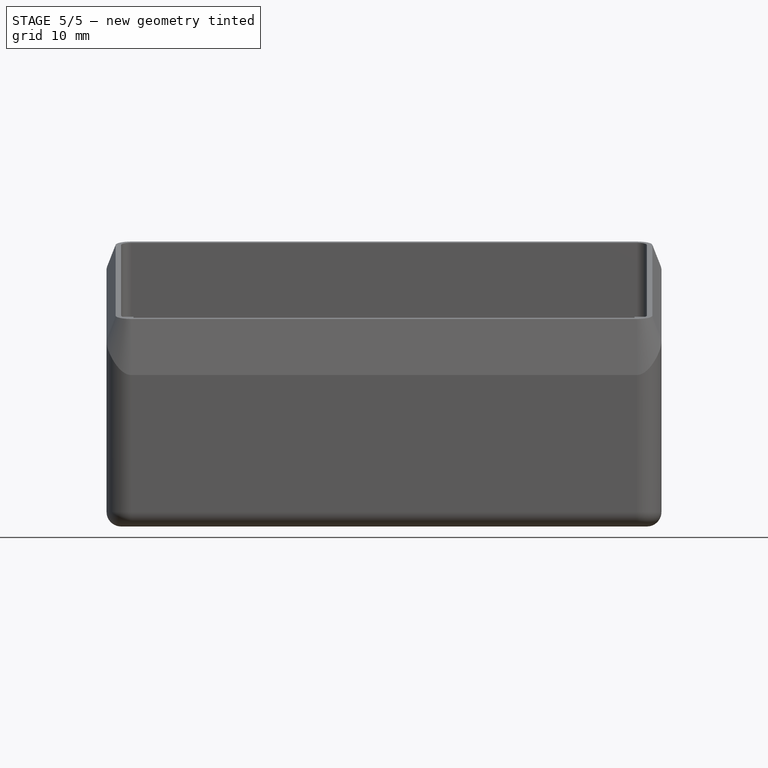
[diagram: stage 5 of 5 — front view after this stage's code; geometry added in this stage tinted green]
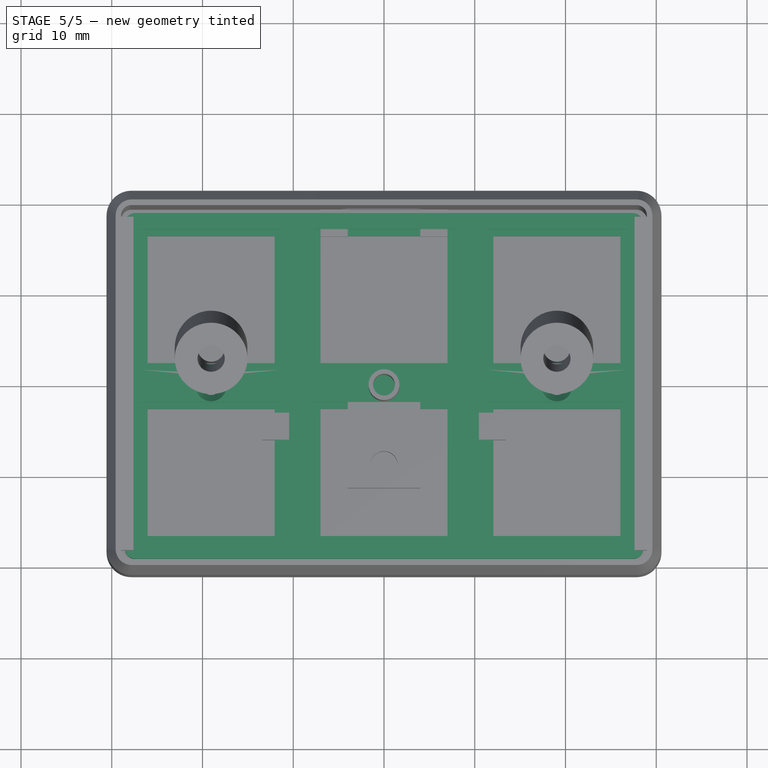
[diagram: stage 5 of 5 — top view after this stage's code; geometry added in this stage tinted green]
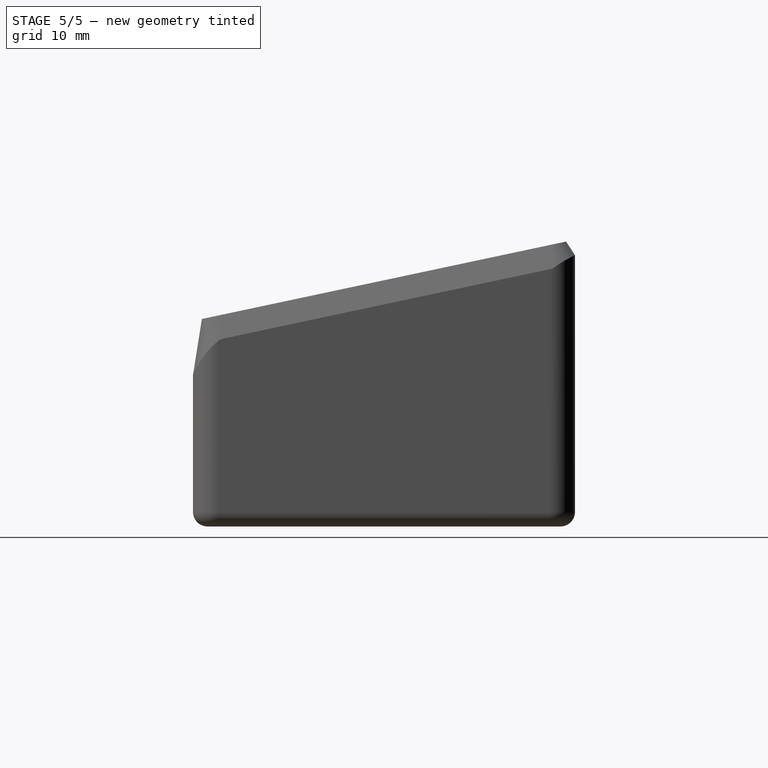
[diagram: stage 5 of 5 — right view after this stage's code; geometry added in this stage tinted green]
FEATURE [Spreadsheet::Sheet] Spreadsheet
  cells = A1='Switch Bigger Frame; B1(sw_big_frame)=15.5; A2='Switch Smaller Frame; B2(sw_small_frame)=14; D2='AUTO CALCULATED; A3='Switch spacing; B3(sw_spacing)=3.55; D3='Plate lenght; E3(plate_lenght)==$B4 + $B4 + $B1 + $B3 + $B1; A4='Plate wall thickness; B4(plate_wall_thickness)=1.77; D4='Plate width; E4(plate_width)==$B4 + $B1 + $B3 + $B1 + $B3 + $B1 + $B4; A5='Plate fillet; B5(plate_fillet)=1.14; A6='Plate pad; B6(plate_pad)=2.3; D6='Constant - calculated from sketch; A7='Switch bigger frame pocket; B7(sw_big_frame_pocket)=0.8; D7='Plate mouting hole spacing; E7(plate_mouting_hole_spacing)=38.1; A8='Plate mouting hole diameter; B8(plate_mouting_hole_diameter)=2; A9='Plate mouting hole chamfer; B9(plate_mouting_hole_chamfer)=1; A10='Plate lenght; A12='BASE; A13='Base wall thickness; B13(base_wall_thickness)=1.6; A14='Base offset (tolerance); B14(base_tolerance_offset)=0.4; A15='Base inner lenght; B15(base_inner_lenght)==$E3 + $B14 + $B14; A16='Base inner width; B16(base_inner_width)==$E4 + $B14 + $B14; A17='Base fillet; B17(base_fillet)==$B5; A18='Base height; B18(base_height)=30; A19='base height angle; B19(base_height_angle)=12; A21='base plate mouting hole diameter (for knurled nut); B21(base_plate_mouting_hole_diameter)=3; A22='Base plate mouting hole outer diameter; B22(base_plate_mouting_hole_outer_diameter)=8; A23='Base plate mouting hole height; B23(base_plate_mouting_hole_height)=10; A24='Base plate mouting hole offset; B24(base_plate_mouting_hole_offset)=0.8; A26='Base plate mouting points distance to top; B26(base_plate_mouting_points_distance_to_top)=8.5; A27='Base plate mouting points thickness; B27(base_plate_mouting_points_thickness)=1.5; A30='ESP; A31='esp_width; B31(esp_width)=20.5; A32='esp_lenght; B32(esp_lenght)=25; A33='esp_mouting_points_height; B33(esp_mouting_points_height)=2; A34='esp blockades height; B34(esp_blockades_height)=3.3; A35='esp mouting points dimensions smaller; B35(esp_mouting_points_dimensions_smaller)=3; A36='esp offset tolerance; B36(esp_tolerance_offset)=0.2; A37='esp mouting hole dimension; B37(esp_mouting_hole_dimension)=3; A38='esp mouing hole pocket; B38(esp_mouting_hole_pocket)=3; A41='USB distance from bottom; B41(usb_distance_from_top)=4.6; A42='USB height; B42(usb_height)=3.16; A43='USB width; B43(usb_width)=8.95; A44='USB fillet; B44(usb_fillet)=1.25; A45='USB offset; B45(usb_offset)=0.3; A46='USB chamfer; B46(usb_chamfer)=1.3
FEATURE [Sketcher::SketchObject] Sketch002
  ArcFitTolerance = 1e-06
  AttachmentSupport = -> [XY_Plane002]
  FullyConstrained = true
  MakeInternals = false
  MapMode = 5
  expr: Constraints[108] = Spreadsheet.sw_small_frame
  expr: Constraints[23] = Spreadsheet.sw_spacing
  expr: Constraints[35] = Spreadsheet.sw_spacing
  expr: Constraints[49] = Spreadsheet.sw_spacing
  expr: Constraints[61] = Spreadsheet.sw_spacing
  expr: Constraints[62] = Spreadsheet.sw_spacing
  expr: Constraints[73] = Spreadsheet.sw_spacing
  expr: Constraints[74] = Spreadsheet.sw_spacing
  expr: Constraints[94] = Spreadsheet.plate_fillet
  expr: Constraints[96] = Spreadsheet.plate_wall_thickness
  expr: Constraints[97] = Spreadsheet.plate_wall_thickness
  expr: Constraints[9] = Spreadsheet.sw_big_frame
  sketch-geometry (70):
    g0: LineSegment [constr] StartX=-7.75 StartY=-17.275 StartZ=0 EndX=7.75 EndY=-17.275 EndZ=0
    g1: LineSegment [constr] StartX=7.75 StartY=-17.275 StartZ=0 EndX=7.75 EndY=-1.775 EndZ=0
    g2: LineSegment [constr] StartX=7.75 StartY=-1.775 StartZ=0 EndX=-7.75 EndY=-1.775 EndZ=0
    g3: LineSegment [constr] StartX=-7.75 StartY=-1.775 StartZ=0 EndX=-7.75 EndY=-17.275 EndZ=0
    g4: GeomPoint [constr] X=2e-16 Y=-9.525 Z=0
    g5: LineSegment [constr] StartX=11.3 StartY=-1.775 StartZ=0 EndX=11.3 EndY=-17.275 EndZ=0
    g6: LineSegment [constr] StartX=11.3 StartY=-17.275 StartZ=0 EndX=26.8 EndY=-17.275 EndZ=0
    g7: LineSegment [constr] StartX=26.8 StartY=-17.275 StartZ=0 EndX=26.8 EndY=-1.775 EndZ=0
    g8: LineSegment [constr] StartX=26.8 StartY=-1.775 StartZ=0 EndX=11.3 EndY=-1.775 EndZ=0
    g9: GeomPoint [constr] X=19.05 Y=-9.525 Z=0
    g10: LineSegment [constr] StartX=-26.8 StartY=-17.275 StartZ=0 EndX=-11.3 EndY=-17.275 EndZ=0
    g11: LineSegment [constr] StartX=-11.3 StartY=-17.275 StartZ=0 EndX=-11.3 EndY=-1.775 EndZ=0
    g12: LineSegment [constr] StartX=-11.3 StartY=-1.775 StartZ=0 EndX=-26.8 EndY=-1.775 EndZ=0
    g13: LineSegment [constr] StartX=-26.8 StartY=-1.775 StartZ=0 EndX=-26.8 EndY=-17.275 EndZ=0
    g14: GeomPoint [constr] X=-19.05 Y=-9.525 Z=0
    g15: LineSegment [constr] StartX=-7.75 StartY=1.775 StartZ=0 EndX=7.75 EndY=1.775 EndZ=0
    g16: LineSegment [constr] StartX=7.75 StartY=1.775 StartZ=0 EndX=7.75 EndY=17.275 EndZ=0
    g17: LineSegment [constr] StartX=7.75 StartY=17.275 StartZ=0 EndX=-7.75 EndY=17.275 EndZ=0
    g18: LineSegment [constr] StartX=-7.75 StartY=17.275 StartZ=0 EndX=-7.75 EndY=1.775 EndZ=0
    g19: GeomPoint [constr] X=-4e-16 Y=9.525 Z=0
    g20: LineSegment [constr] StartX=11.3 StartY=1.775 StartZ=0 EndX=26.8 EndY=1.775 EndZ=0
    g21: LineSegment [constr] StartX=26.8 StartY=1.775 StartZ=0 EndX=26.8 EndY=17.275 EndZ=0
    g22: LineSegment [constr] StartX=26.8 StartY=17.275 StartZ=0 EndX=11.3 EndY=17.275 EndZ=0
    g23: LineSegment [constr] StartX=11.3 StartY=17.275 StartZ=0 EndX=11.3 EndY=1.775 EndZ=0
    g24: GeomPoint [constr] X=19.05 Y=9.525 Z=0
    g25: LineSegment [constr] StartX=-26.8 StartY=1.775 StartZ=0 EndX=-11.3 EndY=1.775 EndZ=0
    g26: LineSegment [constr] StartX=-11.3 StartY=1.775 StartZ=0 EndX=-11.3 EndY=17.275 EndZ=0
    g27: LineSegment [constr] StartX=-11.3 StartY=17.275 StartZ=0 EndX=-26.8 EndY=17.275 EndZ=0
    g28: LineSegment [constr] StartX=-26.8 StartY=17.275 StartZ=0 EndX=-26.8 EndY=1.775 EndZ=0
    g29: LineSegment StartX=-27.43 StartY=-19.045 StartZ=0 EndX=27.43 EndY=-19.045 EndZ=0
    g30: LineSegment StartX=28.57 StartY=-17.905 StartZ=0 EndX=28.57 EndY=17.905 EndZ=0
    g31: LineSegment StartX=27.43 StartY=19.045 StartZ=0 EndX=-27.43 EndY=19.045 EndZ=0
    g32: LineSegment StartX=-28.57 StartY=17.905 StartZ=0 EndX=-28.57 EndY=-17.905 EndZ=0
    g33: ArcOfCircle CenterX=-27.43 CenterY=-17.905 CenterZ=0 NormalX=0 NormalY=0 NormalZ=1 AngleXU=0 Radius=1.14 StartAngle=3.14159 EndAngle=4.71239
    g34: ArcOfCircle CenterX=27.43 CenterY=-17.905 CenterZ=0 NormalX=0 NormalY=0 NormalZ=1 AngleXU=0 Radius=1.14 StartAngle=4.71239 EndAngle=6.28319
    g35: ArcOfCircle CenterX=27.43 CenterY=17.905 CenterZ=0 NormalX=0 NormalY=0 NormalZ=1 AngleXU=0 Radius=1.14 StartAngle=3e-16 EndAngle=1.5708
    g36: ArcOfCircle CenterX=-27.43 CenterY=17.905 CenterZ=0 NormalX=0 NormalY=0 NormalZ=1 AngleXU=0 Radius=1.14 StartAngle=1.5708 EndAngle=3.14159
    g37: GeomPoint [constr] X=28.57 Y=19.045 Z=0
    g38: GeomPoint [constr] X=0 Y=0 Z=0
    g39: LineSegment StartX=-7 StartY=-16.525 StartZ=0 EndX=7 EndY=-16.525 EndZ=0
    g40: LineSegment StartX=7 StartY=-16.525 StartZ=0 EndX=7 EndY=-2.525 EndZ=0
    g41: LineSegment StartX=7 StartY=-2.525 StartZ=0 EndX=-7 EndY=-2.525 EndZ=0
    g42: LineSegment StartX=-7 StartY=-2.525 StartZ=0 EndX=-7 EndY=-16.525 EndZ=0
    g43: GeomPoint [constr] X=2e-16 Y=-9.525 Z=0
    g44: LineSegment StartX=12.05 StartY=-16.525 StartZ=0 EndX=26.05 EndY=-16.525 EndZ=0
    g45: LineSegment StartX=26.05 StartY=-16.525 StartZ=0 EndX=26.05 EndY=-2.525 EndZ=0
    g46: LineSegment StartX=26.05 StartY=-2.525 StartZ=0 EndX=12.05 EndY=-2.525 EndZ=0
    g47: LineSegment StartX=12.05 StartY=-2.525 StartZ=0 EndX=12.05 EndY=-16.525 EndZ=0
    g48: GeomPoint [constr] X=19.05 Y=-9.525 Z=0
    g49: LineSegment StartX=12.05 StartY=2.525 StartZ=0 EndX=26.05 EndY=2.525 EndZ=0
    g50: LineSegment StartX=26.05 StartY=2.525 StartZ=0 EndX=26.05 EndY=16.525 EndZ=0
    g51: LineSegment StartX=26.05 StartY=16.525 StartZ=0 EndX=12.05 EndY=16.525 EndZ=0
    g52: LineSegment StartX=12.05 StartY=16.525 StartZ=0 EndX=12.05 EndY=2.525 EndZ=0
    g53: GeomPoint [constr] X=19.05 Y=9.525 Z=0
    g54: LineSegment StartX=-7 StartY=2.525 StartZ=0 EndX=7 EndY=2.525 EndZ=0
    g55: LineSegment StartX=7 StartY=2.525 StartZ=0 EndX=7 EndY=16.525 EndZ=0
    g56: LineSegment StartX=7 StartY=16.525 StartZ=0 EndX=-7 EndY=16.525 EndZ=0
    g57: LineSegment StartX=-7 StartY=16.525 StartZ=0 EndX=-7 EndY=2.525 EndZ=0
    g58: GeomPoint [constr] X=-4e-16 Y=9.525 Z=0
    g59: LineSegment StartX=-26.05 StartY=-16.525 StartZ=0 EndX=-12.05 EndY=-16.525 EndZ=0
    g60: LineSegment StartX=-12.05 StartY=-16.525 StartZ=0 EndX=-12.05 EndY=-2.525 EndZ=0
    g61: LineSegment StartX=-12.05 StartY=-2.525 StartZ=0 EndX=-26.05 EndY=-2.525 EndZ=0
    g62: LineSegment StartX=-26.05 StartY=-2.525 StartZ=0 EndX=-26.05 EndY=-16.525 EndZ=0
    g63: GeomPoint [constr] X=-19.05 Y=-9.525 Z=0
    g64: GeomPoint [constr] X=-19.05 Y=9.525 Z=0
    g65: LineSegment StartX=-26.05 StartY=2.525 StartZ=0 EndX=-12.05 EndY=2.525 EndZ=0
    g66: LineSegment StartX=-12.05 StartY=2.525 StartZ=0 EndX=-12.05 EndY=16.525 EndZ=0
    g67: LineSegment StartX=-12.05 StartY=16.525 StartZ=0 EndX=-26.05 EndY=16.525 EndZ=0
    g68: LineSegment StartX=-26.05 StartY=16.525 StartZ=0 EndX=-26.05 EndY=2.525 EndZ=0
    g69: GeomPoint [constr] X=-19.05 Y=9.525 Z=0
  constraints (173):
    c: Coincident(g0,g1)
    c: Coincident(g1,g2)
    c: Coincident(g2,g3)
    c: Coincident(g3,g0)
    c: Horizontal(g0)
    c: Horizontal(g2)
    c: Vertical(g1)
    c: Vertical(g3)
    c: Symmetric(g2,g0,g4)
    c: Distance(g1,g3) = 15.5
    c: Distance(g0,g2) = 15.5
    c: PointOnObject(g4,g-2)
    c: Coincident(g5,g6)
    c: Coincident(g6,g7)
    c: Coincident(g7,g8)
    c: Coincident(g8,g5)
    c: Vertical(g5)
    c: Vertical(g7)
    c: Horizontal(g6)
    c: Horizontal(g8)
    c: Symmetric(g7,g5,g9)
    c: Equal(g8,g2)
    c: Equal(g5,g1)
    c: Distance(g5,g1) = 3.55
    c: Coincident(g10,g11)
    c: Coincident(g11,g12)
    c: Coincident(g12,g13)
    c: Coincident(g13,g10)
    c: Horizontal(g10)
    c: Horizontal(g12)
    c: Vertical(g11)
    c: Vertical(g13)
    c: Symmetric(g12,g10,g14)
    c: Equal(g3,g11)
    c: Equal(g12,g2)
    c: Distance(g3,g11) = 3.55
    c: Horizontal(g10,g0)
    c: Horizontal(g0,g5)
    c: Coincident(g15,g16)
    c: Coincident(g16,g17)
    c: Coincident(g17,g18)
    c: Coincident(g18,g15)
    c: Horizontal(g15)
    c: Horizontal(g17)
    c: Vertical(g16)
    c: Vertical(g18)
    c: Symmetric(g17,g15,g19)
    c: Equal(g2,g15)
    c: Equal(g1,g16)
    c: Distance(g15,g2) = 3.55
    c: Coincident(g20,g21)
    c: Coincident(g21,g22)
    c: Coincident(g22,g23)
    c: Coincident(g23,g20)
    c: Horizontal(g20)
    c: Horizontal(g22)
    c: Vertical(g21)
    c: Vertical(g23)
    c: Symmetric(g22,g20,g24)
    c: Equal(g23,g2)
    c: Equal(g20,g1)
    c: Distance(g23,g16) = 3.55
    c: Distance(g8,g20) = 3.55
    c: Coincident(g25,g26)
    c: Coincident(g26,g27)
    c: Coincident(g27,g28)
    c: Coincident(g28,g25)
    c: Horizontal(g25)
    c: Horizontal(g27)
    c: Vertical(g26)
    c: Vertical(g28)
    c: Equal(g27,g2)
    c: Equal(g26,g1)
    c: Distance(g18,g26) = 3.55
    c: Distance(g12,g25) = 3.55
    c: Symmetric(g19,g4,g-1)
    c: Tangent(g29,g33) = -1.5708
    c: Tangent(g29,g34) = -1.5708
    c: Tangent(g30,g34) = -1.5708
    c: Tangent(g30,g35) = -1.5708
    c: Tangent(g31,g35) = -1.5708
    c: Tangent(g31,g36) = -1.5708
    c: Tangent(g32,g36) = -1.5708
    c: Tangent(g32,g33) = -1.5708
    c: Horizontal(g29)
    c: Horizontal(g31)
    c: Vertical(g30)
    c: Vertical(g32)
    c: Equal(g33,g34)
    c: Equal(g34,g35)
    c: Equal(g35,g36)
    c: Symmetric(g31,g29,g38)
    c: PointOnObject(g37,g30)
    c: PointOnObject(g37,g31)
    c: Radius(g34) = 1.14
    c: Coincident(g38,g-1)
    c: Distance(g13,g32) = 1.77
    c: Distance(g29,g10) = 1.77
    c: Coincident(g39,g40)
    c: Coincident(g40,g41)
    c: Coincident(g41,g42)
    c: Coincident(g42,g39)
    c: Horizontal(g39)
    c: Horizontal(g41)
    c: Vertical(g40)
    c: Vertical(g42)
    c: Symmetric(g41,g39,g43)
    c: Coincident(g43,g4)
    c: DistanceX(g39,g39) = 14
    c: Equal(g40,g39)
    c: Coincident(g44,g45)
    c: Coincident(g45,g46)
    c: Coincident(g46,g47)
    c: Coincident(g47,g44)
    c: Horizontal(g44)
    c: Horizontal(g46)
    c: Vertical(g45)
    c: Vertical(g47)
    c: Symmetric(g46,g44,g48)
    c: Coincident(g48,g9)
    c: Equal(g44,g39)
    c: Equal(g45,g40)
    c: Coincident(g49,g50)
    c: Coincident(g50,g51)
    c: Coincident(g51,g52)
    c: Coincident(g52,g49)
    c: Horizontal(g49)
    c: Horizontal(g51)
    c: Vertical(g50)
    c: Vertical(g52)
    c: Symmetric(g51,g49,g53)
    c: Coincident(g53,g24)
    c: Coincident(g54,g55)
    c: Coincident(g55,g56)
    c: Coincident(g56,g57)
    c: Coincident(g57,g54)
    c: Horizontal(g54)
    c: Horizontal(g56)
    c: Vertical(g55)
    c: Vertical(g57)
    c: Symmetric(g56,g54,g58)
    c: Coincident(g58,g19)
    c: Coincident(g59,g60)
    c: Coincident(g60,g61)
    c: Coincident(g61,g62)
    c: Coincident(g62,g59)
    c: Horizontal(g59)
    c: Horizontal(g61)
    c: Vertical(g60)
    c: Vertical(g62)
    c: Symmetric(g61,g59,g63)
    c: Coincident(g63,g14)
    c: Equal(g49,g46)
    c: Equal(g49,g50)
    c: Equal(g54,g55)
    c: Equal(g54,g41)
    c: Equal(g61,g60)
    c: Equal(g60,g42)
    c: Symmetric(g27,g25,g64)
    c: Coincident(g65,g66)
    c: Coincident(g66,g67)
    c: Coincident(g67,g68)
    c: Coincident(g68,g65)
    c: Horizontal(g65)
    c: Horizontal(g67)
    c: Vertical(g66)
    c: Vertical(g68)
    c: Symmetric(g67,g65,g69)
    c: Coincident(g69,g64)
    c: Equal(g66,g67)
    c: Equal(g66,g57)
    c: Distance(g29,g31) = 38.09
    c: Distance(g30,g32) = 57.14
FEATURE [PartDesign::Pad] Pad001
  Direction = (0,0,1)
  Length = 2.3
  Length2 = 10
  Profile = -> Sketch002
  ReferenceAxis = -> Sketch002 [N_Axis]
  Refine = true
  Suppressed = false
  Type = 0
  expr: Length = Spreadsheet.plate_pad
FEATURE [Sketcher::SketchObject] Sketch003
  ArcFitTolerance = 1e-06
  AttachmentSupport = -> [Pad001]
  ExternalGeometry = -> [Pad001]
  FullyConstrained = true
  MakeInternals = false
  MapMode = 5
  Placement = pos=(0,0,2.3) rot=(0,0,1;0rad)
  expr: Constraints[17] = Spreadsheet.sw_big_frame
  sketch-geometry (36):
    g0: GeomPoint [constr] X=-19.05 Y=9.525 Z=0
    g1: GeomPoint [constr] X=-2.788e-13 Y=9.525 Z=0
    g2: GeomPoint [constr] X=19.05 Y=9.525 Z=0
    g3: GeomPoint [constr] X=19.05 Y=-9.525 Z=0
    g4: GeomPoint [constr] X=-2.1e-15 Y=-9.525 Z=0
    g5: GeomPoint [constr] X=-19.05 Y=-9.525 Z=0
    g6: LineSegment StartX=-7.75 StartY=-17.275 StartZ=0 EndX=7.75 EndY=-17.275 EndZ=0
    g7: LineSegment StartX=7.75 StartY=-17.275 StartZ=0 EndX=7.75 EndY=-1.775 EndZ=0
    g8: LineSegment StartX=7.75 StartY=-1.775 StartZ=0 EndX=-7.75 EndY=-1.775 EndZ=0
    g9: LineSegment StartX=-7.75 StartY=-1.775 StartZ=0 EndX=-7.75 EndY=-17.275 EndZ=0
    g10: GeomPoint [constr] X=-2.1e-15 Y=-9.525 Z=0
    g11: LineSegment StartX=26.8 StartY=-17.275 StartZ=0 EndX=26.8 EndY=-1.775 EndZ=0
    g12: LineSegment StartX=26.8 StartY=-1.775 StartZ=0 EndX=11.3 EndY=-1.775 EndZ=0
    g13: LineSegment StartX=11.3 StartY=-1.775 StartZ=0 EndX=11.3 EndY=-17.275 EndZ=0
    g14: LineSegment StartX=11.3 StartY=-17.275 StartZ=0 EndX=26.8 EndY=-17.275 EndZ=0
    g15: GeomPoint [constr] X=19.05 Y=-9.525 Z=0
    g16: LineSegment StartX=-26.8 StartY=-17.275 StartZ=0 EndX=-11.3 EndY=-17.275 EndZ=0
    g17: LineSegment StartX=-11.3 StartY=-17.275 StartZ=0 EndX=-11.3 EndY=-1.775 EndZ=0
    g18: LineSegment StartX=-11.3 StartY=-1.775 StartZ=0 EndX=-26.8 EndY=-1.775 EndZ=0
    g19: LineSegment StartX=-26.8 StartY=-1.775 StartZ=0 EndX=-26.8 EndY=-17.275 EndZ=0
    g20: GeomPoint [constr] X=-19.05 Y=-9.525 Z=0
    g21: LineSegment StartX=-26.8 StartY=1.775 StartZ=0 EndX=-11.3 EndY=1.775 EndZ=0
    g22: LineSegment StartX=-11.3 StartY=1.775 StartZ=0 EndX=-11.3 EndY=17.275 EndZ=0
    g23: LineSegment StartX=-11.3 StartY=17.275 StartZ=0 EndX=-26.8 EndY=17.275 EndZ=0
    g24: LineSegment StartX=-26.8 StartY=17.275 StartZ=0 EndX=-26.8 EndY=1.775 EndZ=0
    g25: GeomPoint [constr] X=-19.05 Y=9.525 Z=0
    g26: LineSegment StartX=-7.75 StartY=1.775 StartZ=0 EndX=7.75 EndY=1.775 EndZ=0
    g27: LineSegment StartX=7.75 StartY=1.775 StartZ=0 EndX=7.75 EndY=17.275 EndZ=0
    g28: LineSegment StartX=7.75 StartY=17.275 StartZ=0 EndX=-7.75 EndY=17.275 EndZ=0
    g29: LineSegment StartX=-7.75 StartY=17.275 StartZ=0 EndX=-7.75 EndY=1.775 EndZ=0
    g30: GeomPoint [constr] X=-2.788e-13 Y=9.525 Z=0
    g31: LineSegment StartX=11.3 StartY=1.775 StartZ=0 EndX=26.8 EndY=1.775 EndZ=0
    g32: LineSegment StartX=26.8 StartY=1.775 StartZ=0 EndX=26.8 EndY=17.275 EndZ=0
    g33: LineSegment StartX=26.8 StartY=17.275 StartZ=0 EndX=11.3 EndY=17.275 EndZ=0
    g34: LineSegment StartX=11.3 StartY=17.275 StartZ=0 EndX=11.3 EndY=1.775 EndZ=0
    g35: GeomPoint [constr] X=19.05 Y=9.525 Z=0
  constraints (78):
    c: Symmetric(g-5,g-6,g5)
    c: Symmetric(g-7,g-8,g0)
    c: Symmetric(g-10,g-9,g1)
    c: Symmetric(g-11,g-12,g2)
    c: Symmetric(g-13,g-14,g3)
    c: Symmetric(g-4,g-3,g4)
    c: Coincident(g6,g7)
    c: Coincident(g7,g8)
    c: Coincident(g8,g9)
    c: Coincident(g9,g6)
    c: Horizontal(g6)
    c: Horizontal(g8)
    c: Vertical(g7)
    c: Vertical(g9)
    c: Symmetric(g8,g6,g10)
    c: Coincident(g10,g4)
    c: Equal(g8,g7)
    c: DistanceX(g6,g6) = 15.5
    c: Coincident(g11,g12)
    c: Coincident(g12,g13)
    c: Coincident(g13,g14)
    c: Coincident(g14,g11)
    c: Vertical(g11)
    c: Vertical(g13)
    c: Horizontal(g12)
    c: Horizontal(g14)
    c: Symmetric(g13,g11,g15)
    c: Coincident(g15,g3)
    c: Coincident(g16,g17)
    c: Coincident(g17,g18)
    c: Coincident(g18,g19)
    c: Coincident(g19,g16)
    c: Horizontal(g16)
    c: Horizontal(g18)
    c: Vertical(g17)
    c: Vertical(g19)
    c: Symmetric(g18,g16,g20)
    c: Coincident(g20,g5)
    c: Coincident(g21,g22)
    c: Coincident(g22,g23)
    c: Coincident(g23,g24)
    c: Coincident(g24,g21)
    c: Horizontal(g21)
    c: Horizontal(g23)
    c: Vertical(g22)
    c: Vertical(g24)
    c: Symmetric(g23,g21,g25)
    c: Coincident(g25,g0)
    c: Coincident(g26,g27)
    c: Coincident(g27,g28)
    c: Coincident(g28,g29)
    c: Coincident(g29,g26)
    c: Horizontal(g26)
    c: Horizontal(g28)
    c: Vertical(g27)
    c: Vertical(g29)
    c: Symmetric(g28,g26,g30)
    c: Coincident(g30,g1)
    c: Coincident(g31,g32)
    c: Coincident(g32,g33)
    c: Coincident(g33,g34)
    c: Coincident(g34,g31)
    c: Horizontal(g31)
    c: Horizontal(g33)
    c: Vertical(g32)
    c: Vertical(g34)
    c: Symmetric(g33,g31,g35)
    c: Coincident(g35,g2)
    c: Equal(g33,g32)
    c: Equal(g28,g27)
    c: Equal(g23,g22)
    c: Equal(g18,g17)
    c: Equal(g12,g13)
    c: Equal(g8,g12)
    c: Equal(g18,g8)
    c: Equal(g23,g8)
    c: Equal(g28,g8)
    c: Equal(g33,g8)
FEATURE [PartDesign::Pocket] Pocket
  BaseFeature = -> Pad001
  Direction = (0,0,-1)
  Length = 0.8
  Length2 = 5
  Profile = -> Sketch003
  ReferenceAxis = -> Sketch003 [N_Axis]
  Refine = true
  Suppressed = false
  Type = 0
  expr: Length = Spreadsheet.sw_big_frame_pocket
FEATURE [PartDesign::Pocket] Pocket004  label="Hole Pocket"
  BaseFeature = -> Pocket
  Direction = (0,0,-1)
  Length = 5
  Length2 = 5
  Profile = -> Sketch004
  ReferenceAxis = -> Sketch004 [N_Axis]
  Refine = true
  Suppressed = false
  Type = 1
FEATURE [PartDesign::Chamfer] Chamfer
  Angle = 45
  Base = -> Pocket004 [Edge55,Edge60]
  BaseFeature = -> Pocket004
  ChamferType = 2
  FlipDirection = false
  Refine = true
  Size = 0.7
  Size2 = 1
  SupportTransform = false
  Suppressed = false
  UseAllEdges = false
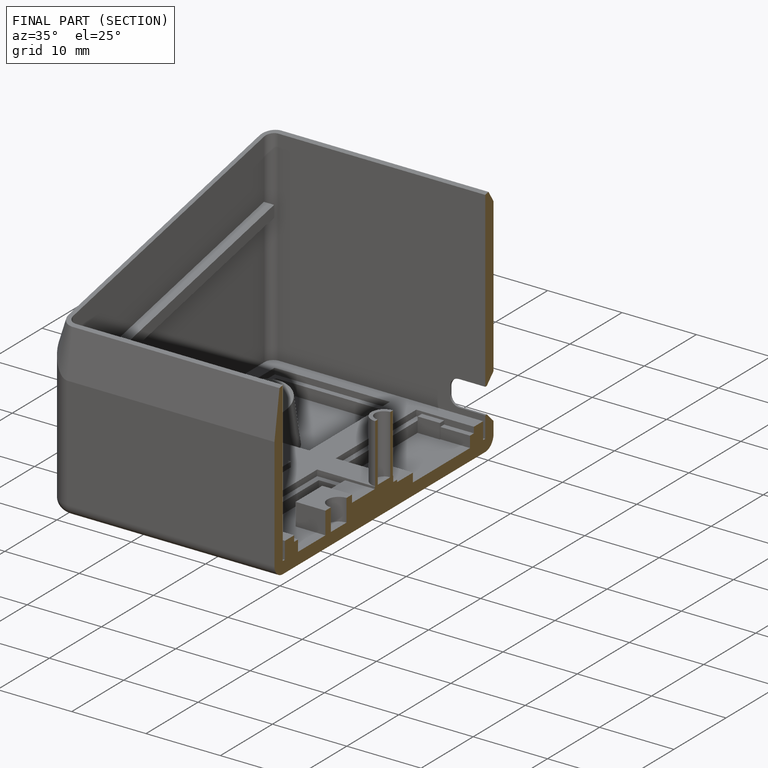
[diagram: finished part — half-section view (interior)]
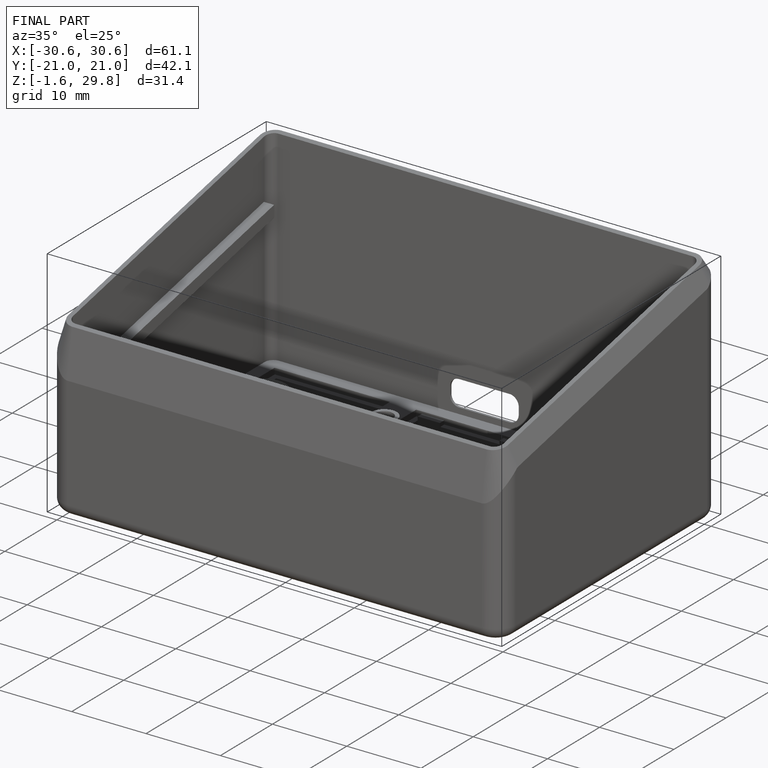
[diagram: finished part — iso view with bounding-box wireframe]
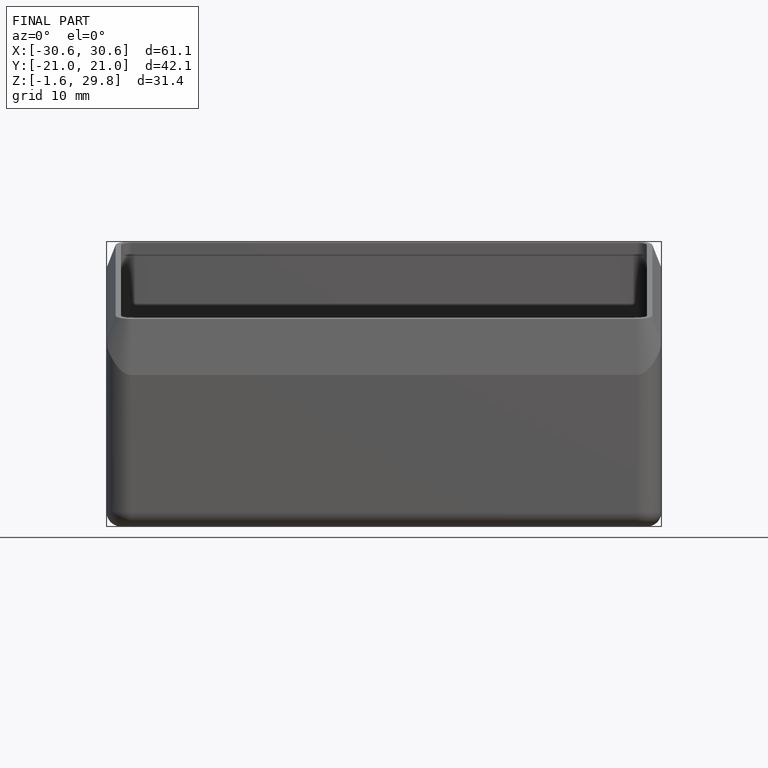
[diagram: finished part — front view with bounding-box wireframe]
